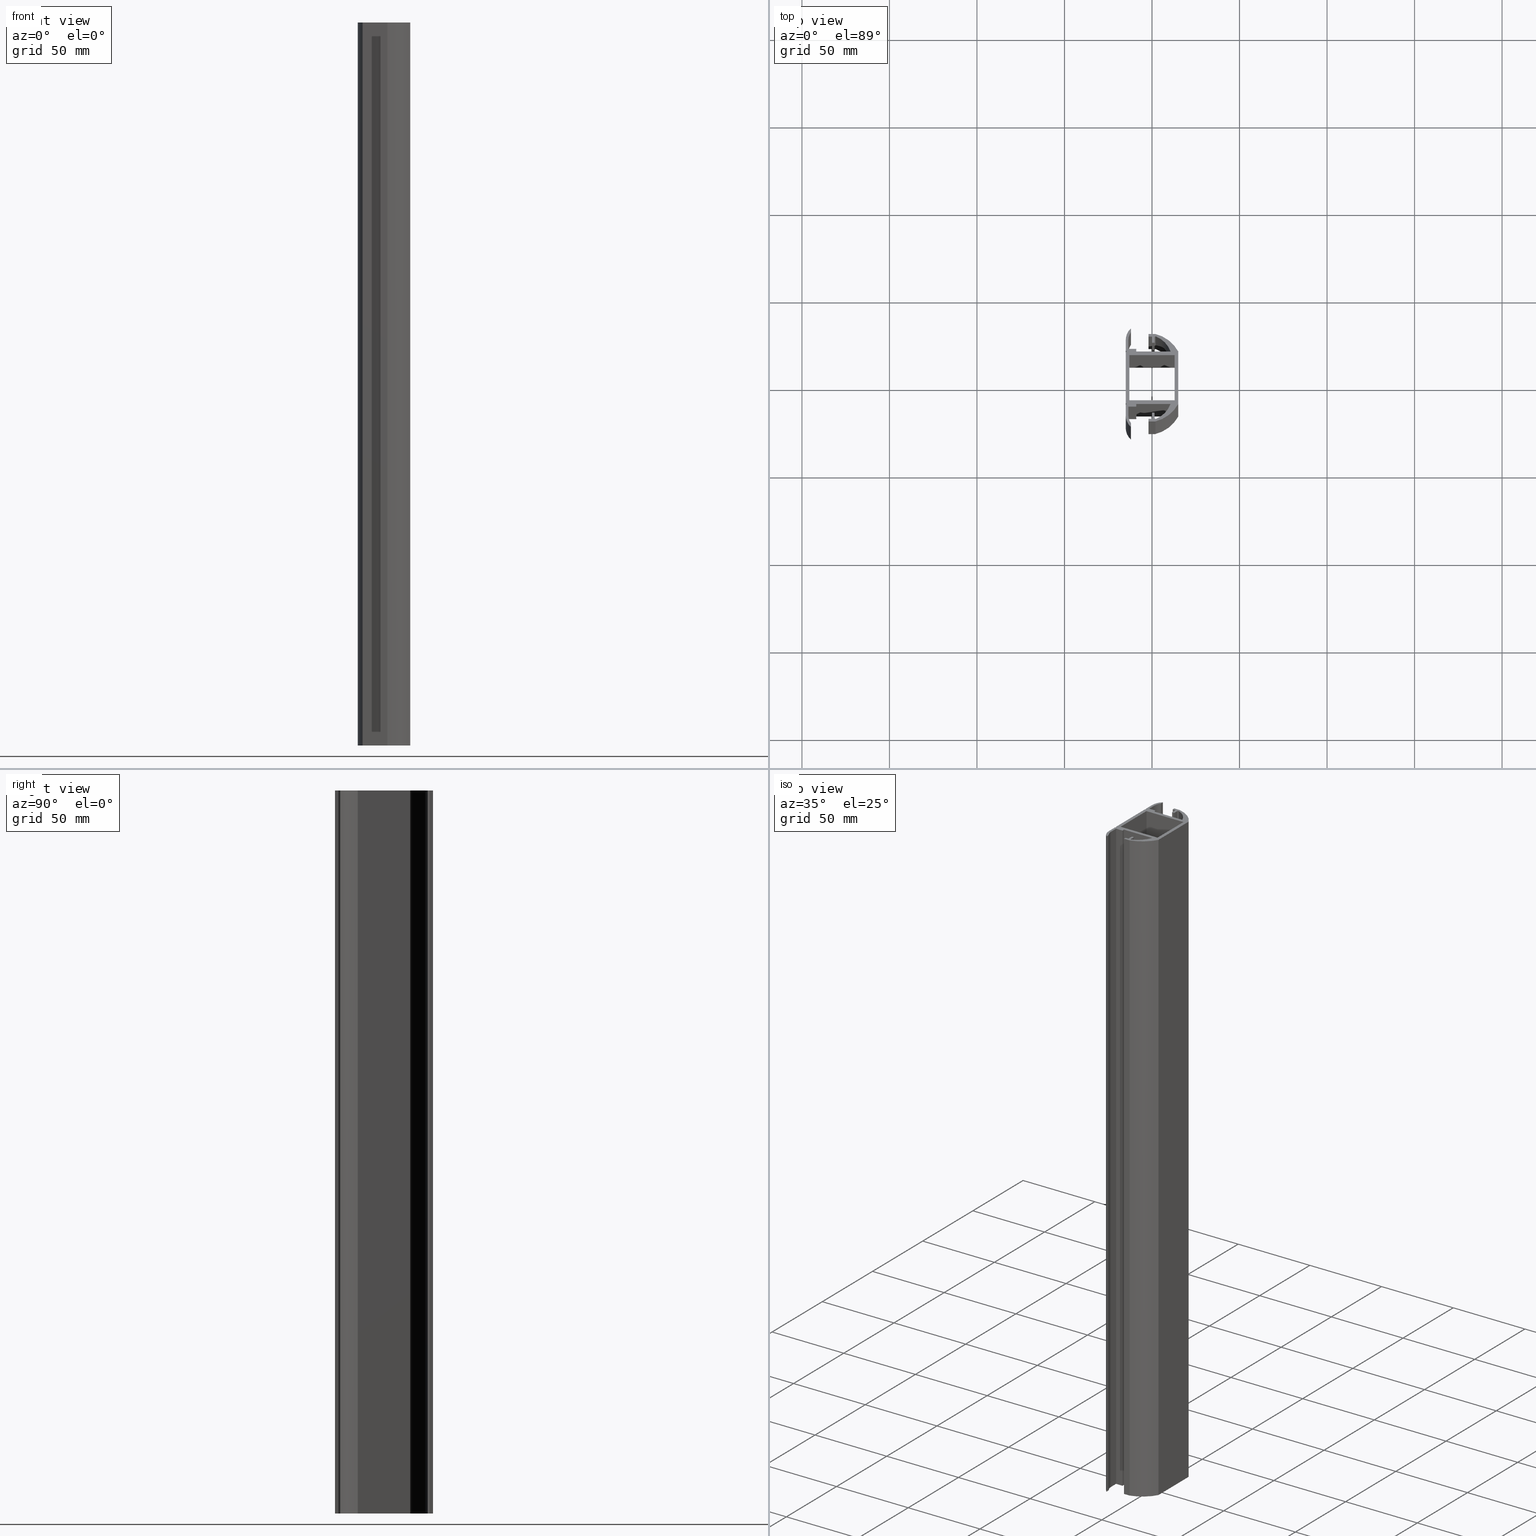
[diagram: canonical four-view strip — front | top / right | iso, engineering-drawing reading convention]
A machine part, canonical four-view strip (front | top / right | iso — engineering-drawing reading convention). The complete STEP part file that produces these views, byte-faithful:
ISO-10303-21;
HEADER;
/* Generated by software containing ST-Developer
 * from STEP Tools, Inc. (www.steptools.com) 
 */

FILE_DESCRIPTION(
/* description */ ('PROFILO X PROTEZIONI '),
/* implementation_level */ '2;1');

FILE_NAME(
/* name */ 'C:\\Users\\tecnico7\\Desktop\\DAAPR0000917.stp',
/* time_stamp */ '2022-07-06T16:43:24+02:00',
/* author */ ('tecnico7'),
/* organization */ (''),
/* preprocessor_version */ 'ST-DEVELOPER v18.1',
/* originating_system */ 'Autodesk Inventor 2022',
/* authorisation */ '');

FILE_SCHEMA (('AUTOMOTIVE_DESIGN { 1 0 10303 214 3 1 1 }'));
ENDSEC;

DATA;
#10=MECHANICAL_DESIGN_GEOMETRIC_PRESENTATION_REPRESENTATION('',(#13),#1602);
#11=SHAPE_REPRESENTATION_RELATIONSHIP('SRR','None',#1609,#12);
#12=ADVANCED_BREP_SHAPE_REPRESENTATION('',(#14),#1601);
#13=STYLED_ITEM('',(#1618),#14);
#14=MANIFOLD_SOLID_BREP('Solido1',#973);
#15=FACE_BOUND('',#146,.T.);
#16=FACE_BOUND('',#148,.T.);
#17=PLANE('',#1002);
#18=PLANE('',#1003);
#19=PLANE('',#1004);
#20=PLANE('',#1005);
#21=PLANE('',#1009);
#22=PLANE('',#1013);
#23=PLANE('',#1014);
#24=PLANE('',#1015);
#25=PLANE('',#1016);
#26=PLANE('',#1017);
#27=PLANE('',#1018);
#28=PLANE('',#1019);
#29=PLANE('',#1020);
#30=PLANE('',#1021);
#31=PLANE('',#1022);
#32=PLANE('',#1023);
#33=PLANE('',#1027);
#34=PLANE('',#1028);
#35=PLANE('',#1029);
#36=PLANE('',#1030);
#37=PLANE('',#1034);
#38=PLANE('',#1035);
#39=PLANE('',#1036);
#40=PLANE('',#1037);
#41=PLANE('',#1038);
#42=PLANE('',#1039);
#43=PLANE('',#1046);
#44=PLANE('',#1047);
#45=PLANE('',#1048);
#46=PLANE('',#1049);
#47=PLANE('',#1056);
#48=PLANE('',#1057);
#49=PLANE('',#1058);
#50=PLANE('',#1059);
#51=PLANE('',#1060);
#52=PLANE('',#1061);
#53=PLANE('',#1062);
#54=PLANE('',#1063);
#55=FACE_OUTER_BOUND('',#103,.T.);
#56=FACE_OUTER_BOUND('',#104,.T.);
#57=FACE_OUTER_BOUND('',#105,.T.);
#58=FACE_OUTER_BOUND('',#106,.T.);
#59=FACE_OUTER_BOUND('',#107,.T.);
#60=FACE_OUTER_BOUND('',#108,.T.);
#61=FACE_OUTER_BOUND('',#109,.T.);
#62=FACE_OUTER_BOUND('',#110,.T.);
#63=FACE_OUTER_BOUND('',#111,.T.);
#64=FACE_OUTER_BOUND('',#112,.T.);
#65=FACE_OUTER_BOUND('',#113,.T.);
#66=FACE_OUTER_BOUND('',#114,.T.);
#67=FACE_OUTER_BOUND('',#115,.T.);
#68=FACE_OUTER_BOUND('',#116,.T.);
#69=FACE_OUTER_BOUND('',#117,.T.);
#70=FACE_OUTER_BOUND('',#118,.T.);
#71=FACE_OUTER_BOUND('',#119,.T.);
#72=FACE_OUTER_BOUND('',#120,.T.);
#73=FACE_OUTER_BOUND('',#121,.T.);
#74=FACE_OUTER_BOUND('',#122,.T.);
#75=FACE_OUTER_BOUND('',#123,.T.);
#76=FACE_OUTER_BOUND('',#124,.T.);
#77=FACE_OUTER_BOUND('',#125,.T.);
#78=FACE_OUTER_BOUND('',#126,.T.);
#79=FACE_OUTER_BOUND('',#127,.T.);
#80=FACE_OUTER_BOUND('',#128,.T.);
#81=FACE_OUTER_BOUND('',#129,.T.);
#82=FACE_OUTER_BOUND('',#130,.T.);
#83=FACE_OUTER_BOUND('',#131,.T.);
#84=FACE_OUTER_BOUND('',#132,.T.);
#85=FACE_OUTER_BOUND('',#133,.T.);
#86=FACE_OUTER_BOUND('',#134,.T.);
#87=FACE_OUTER_BOUND('',#135,.T.);
#88=FACE_OUTER_BOUND('',#136,.T.);
#89=FACE_OUTER_BOUND('',#137,.T.);
#90=FACE_OUTER_BOUND('',#138,.T.);
#91=FACE_OUTER_BOUND('',#139,.T.);
#92=FACE_OUTER_BOUND('',#140,.T.);
#93=FACE_OUTER_BOUND('',#141,.T.);
#94=FACE_OUTER_BOUND('',#142,.T.);
#95=FACE_OUTER_BOUND('',#143,.T.);
#96=FACE_OUTER_BOUND('',#144,.T.);
#97=FACE_OUTER_BOUND('',#145,.T.);
#98=FACE_OUTER_BOUND('',#147,.T.);
#99=FACE_OUTER_BOUND('',#149,.T.);
#100=FACE_OUTER_BOUND('',#150,.T.);
#101=FACE_OUTER_BOUND('',#151,.T.);
#102=FACE_OUTER_BOUND('',#152,.T.);
#103=EDGE_LOOP('',(#639,#640,#641,#642));
#104=EDGE_LOOP('',(#643,#644,#645,#646));
#105=EDGE_LOOP('',(#647,#648,#649,#650));
#106=EDGE_LOOP('',(#651,#652,#653,#654));
#107=EDGE_LOOP('',(#655,#656,#657,#658));
#108=EDGE_LOOP('',(#659,#660,#661,#662));
#109=EDGE_LOOP('',(#663,#664,#665,#666));
#110=EDGE_LOOP('',(#667,#668,#669,#670));
#111=EDGE_LOOP('',(#671,#672,#673,#674));
#112=EDGE_LOOP('',(#675,#676,#677,#678));
#113=EDGE_LOOP('',(#679,#680,#681,#682));
#114=EDGE_LOOP('',(#683,#684,#685,#686));
#115=EDGE_LOOP('',(#687,#688,#689,#690));
#116=EDGE_LOOP('',(#691,#692,#693,#694));
#117=EDGE_LOOP('',(#695,#696,#697,#698));
#118=EDGE_LOOP('',(#699,#700,#701,#702));
#119=EDGE_LOOP('',(#703,#704,#705,#706));
#120=EDGE_LOOP('',(#707,#708,#709,#710));
#121=EDGE_LOOP('',(#711,#712,#713,#714));
#122=EDGE_LOOP('',(#715,#716,#717,#718));
#123=EDGE_LOOP('',(#719,#720,#721,#722));
#124=EDGE_LOOP('',(#723,#724,#725,#726));
#125=EDGE_LOOP('',(#727,#728,#729,#730));
#126=EDGE_LOOP('',(#731,#732,#733,#734));
#127=EDGE_LOOP('',(#735,#736,#737,#738));
#128=EDGE_LOOP('',(#739,#740,#741,#742));
#129=EDGE_LOOP('',(#743,#744,#745,#746));
#130=EDGE_LOOP('',(#747,#748,#749,#750));
#131=EDGE_LOOP('',(#751,#752,#753,#754));
#132=EDGE_LOOP('',(#755,#756,#757,#758));
#133=EDGE_LOOP('',(#759,#760,#761,#762));
#134=EDGE_LOOP('',(#763,#764,#765,#766));
#135=EDGE_LOOP('',(#767,#768,#769,#770));
#136=EDGE_LOOP('',(#771,#772,#773,#774));
#137=EDGE_LOOP('',(#775,#776,#777,#778));
#138=EDGE_LOOP('',(#779,#780,#781,#782));
#139=EDGE_LOOP('',(#783,#784,#785,#786));
#140=EDGE_LOOP('',(#787,#788,#789,#790));
#141=EDGE_LOOP('',(#791,#792,#793,#794));
#142=EDGE_LOOP('',(#795,#796,#797,#798));
#143=EDGE_LOOP('',(#799,#800,#801,#802));
#144=EDGE_LOOP('',(#803,#804,#805,#806));
#145=EDGE_LOOP('',(#807,#808,#809,#810,#811,#812,#813,#814,#815,#816,#817,
#818,#819,#820,#821,#822,#823,#824,#825,#826,#827,#828,#829,#830,#831,#832,
#833,#834,#835,#836,#837,#838,#839,#840,#841,#842,#843,#844,#845,#846,#847,
#848));
#146=EDGE_LOOP('',(#849,#850,#851,#852));
#147=EDGE_LOOP('',(#853,#854,#855,#856,#857,#858,#859,#860,#861,#862,#863,
#864,#865,#866,#867,#868,#869,#870,#871,#872,#873,#874,#875,#876,#877,#878,
#879,#880,#881,#882,#883,#884,#885,#886,#887,#888,#889,#890,#891,#892,#893,
#894));
#148=EDGE_LOOP('',(#895,#896,#897,#898));
#149=EDGE_LOOP('',(#899,#900,#901,#902));
#150=EDGE_LOOP('',(#903,#904,#905,#906));
#151=EDGE_LOOP('',(#907,#908,#909,#910));
#152=EDGE_LOOP('',(#911,#912,#913,#914));
#153=LINE('',#1326,#271);
#154=LINE('',#1329,#272);
#155=LINE('',#1335,#273);
#156=LINE('',#1338,#274);
#157=LINE('',#1340,#275);
#158=LINE('',#1341,#276);
#159=LINE('',#1344,#277);
#160=LINE('',#1346,#278);
#161=LINE('',#1347,#279);
#162=LINE('',#1350,#280);
#163=LINE('',#1352,#281);
#164=LINE('',#1353,#282);
#165=LINE('',#1356,#283);
#166=LINE('',#1358,#284);
#167=LINE('',#1359,#285);
#168=LINE('',#1365,#286);
#169=LINE('',#1368,#287);
#170=LINE('',#1370,#288);
#171=LINE('',#1371,#289);
#172=LINE('',#1377,#290);
#173=LINE('',#1380,#291);
#174=LINE('',#1383,#292);
#175=LINE('',#1385,#293);
#176=LINE('',#1386,#294);
#177=LINE('',#1389,#295);
#178=LINE('',#1391,#296);
#179=LINE('',#1392,#297);
#180=LINE('',#1395,#298);
#181=LINE('',#1397,#299);
#182=LINE('',#1398,#300);
#183=LINE('',#1401,#301);
#184=LINE('',#1403,#302);
#185=LINE('',#1404,#303);
#186=LINE('',#1407,#304);
#187=LINE('',#1409,#305);
#188=LINE('',#1410,#306);
#189=LINE('',#1412,#307);
#190=LINE('',#1413,#308);
#191=LINE('',#1417,#309);
#192=LINE('',#1419,#310);
#193=LINE('',#1421,#311);
#194=LINE('',#1422,#312);
#195=LINE('',#1425,#313);
#196=LINE('',#1427,#314);
#197=LINE('',#1428,#315);
#198=LINE('',#1431,#316);
#199=LINE('',#1433,#317);
#200=LINE('',#1434,#318);
#201=LINE('',#1436,#319);
#202=LINE('',#1437,#320);
#203=LINE('',#1441,#321);
#204=LINE('',#1443,#322);
#205=LINE('',#1445,#323);
#206=LINE('',#1446,#324);
#207=LINE('',#1452,#325);
#208=LINE('',#1455,#326);
#209=LINE('',#1457,#327);
#210=LINE('',#1458,#328);
#211=LINE('',#1461,#329);
#212=LINE('',#1463,#330);
#213=LINE('',#1464,#331);
#214=LINE('',#1467,#332);
#215=LINE('',#1469,#333);
#216=LINE('',#1470,#334);
#217=LINE('',#1473,#335);
#218=LINE('',#1475,#336);
#219=LINE('',#1476,#337);
#220=LINE('',#1482,#338);
#221=LINE('',#1485,#339);
#222=LINE('',#1488,#340);
#223=LINE('',#1490,#341);
#224=LINE('',#1491,#342);
#225=LINE('',#1494,#343);
#226=LINE('',#1496,#344);
#227=LINE('',#1497,#345);
#228=LINE('',#1500,#346);
#229=LINE('',#1502,#347);
#230=LINE('',#1503,#348);
#231=LINE('',#1506,#349);
#232=LINE('',#1508,#350);
#233=LINE('',#1509,#351);
#234=LINE('',#1512,#352);
#235=LINE('',#1514,#353);
#236=LINE('',#1515,#354);
#237=LINE('',#1518,#355);
#238=LINE('',#1520,#356);
#239=LINE('',#1521,#357);
#240=LINE('',#1526,#358);
#241=LINE('',#1534,#359);
#242=LINE('',#1536,#360);
#243=LINE('',#1538,#361);
#244=LINE('',#1539,#362);
#245=LINE('',#1542,#363);
#246=LINE('',#1544,#364);
#247=LINE('',#1545,#365);
#248=LINE('',#1549,#366);
#249=LINE('',#1551,#367);
#250=LINE('',#1553,#368);
#251=LINE('',#1554,#369);
#252=LINE('',#1557,#370);
#253=LINE('',#1559,#371);
#254=LINE('',#1560,#372);
#255=LINE('',#1566,#373);
#256=LINE('',#1569,#374);
#257=LINE('',#1575,#375);
#258=LINE('',#1578,#376);
#259=LINE('',#1580,#377);
#260=LINE('',#1581,#378);
#261=LINE('',#1583,#379);
#262=LINE('',#1584,#380);
#263=LINE('',#1586,#381);
#264=LINE('',#1587,#382);
#265=LINE('',#1588,#383);
#266=LINE('',#1589,#384);
#267=LINE('',#1591,#385);
#268=LINE('',#1592,#386);
#269=LINE('',#1593,#387);
#270=LINE('',#1594,#388);
#271=VECTOR('',#1070,10.);
#272=VECTOR('',#1073,10.);
#273=VECTOR('',#1080,10.);
#274=VECTOR('',#1083,10.);
#275=VECTOR('',#1084,10.);
#276=VECTOR('',#1085,10.);
#277=VECTOR('',#1088,10.);
#278=VECTOR('',#1089,10.);
#279=VECTOR('',#1090,10.);
#280=VECTOR('',#1093,10.);
#281=VECTOR('',#1094,10.);
#282=VECTOR('',#1095,10.);
#283=VECTOR('',#1098,10.);
#284=VECTOR('',#1099,10.);
#285=VECTOR('',#1100,10.);
#286=VECTOR('',#1107,10.);
#287=VECTOR('',#1110,10.);
#288=VECTOR('',#1111,10.);
#289=VECTOR('',#1112,10.);
#290=VECTOR('',#1117,10.);
#291=VECTOR('',#1120,10.);
#292=VECTOR('',#1123,10.);
#293=VECTOR('',#1124,10.);
#294=VECTOR('',#1125,10.);
#295=VECTOR('',#1128,10.);
#296=VECTOR('',#1129,10.);
#297=VECTOR('',#1130,10.);
#298=VECTOR('',#1133,10.);
#299=VECTOR('',#1134,10.);
#300=VECTOR('',#1135,10.);
#301=VECTOR('',#1138,10.);
#302=VECTOR('',#1139,10.);
#303=VECTOR('',#1140,10.);
#304=VECTOR('',#1143,10.);
#305=VECTOR('',#1144,10.);
#306=VECTOR('',#1145,10.);
#307=VECTOR('',#1148,10.);
#308=VECTOR('',#1149,10.);
#309=VECTOR('',#1152,10.);
#310=VECTOR('',#1153,10.);
#311=VECTOR('',#1154,10.);
#312=VECTOR('',#1155,10.);
#313=VECTOR('',#1158,10.);
#314=VECTOR('',#1159,10.);
#315=VECTOR('',#1160,10.);
#316=VECTOR('',#1163,10.);
#317=VECTOR('',#1164,10.);
#318=VECTOR('',#1165,10.);
#319=VECTOR('',#1168,10.);
#320=VECTOR('',#1169,10.);
#321=VECTOR('',#1172,10.);
#322=VECTOR('',#1173,10.);
#323=VECTOR('',#1174,10.);
#324=VECTOR('',#1175,10.);
#325=VECTOR('',#1182,10.);
#326=VECTOR('',#1185,10.);
#327=VECTOR('',#1186,10.);
#328=VECTOR('',#1187,10.);
#329=VECTOR('',#1190,10.);
#330=VECTOR('',#1191,10.);
#331=VECTOR('',#1192,10.);
#332=VECTOR('',#1195,10.);
#333=VECTOR('',#1196,10.);
#334=VECTOR('',#1197,10.);
#335=VECTOR('',#1200,10.);
#336=VECTOR('',#1201,10.);
#337=VECTOR('',#1202,10.);
#338=VECTOR('',#1207,10.);
#339=VECTOR('',#1210,10.);
#340=VECTOR('',#1213,10.);
#341=VECTOR('',#1214,10.);
#342=VECTOR('',#1215,10.);
#343=VECTOR('',#1218,10.);
#344=VECTOR('',#1219,10.);
#345=VECTOR('',#1220,10.);
#346=VECTOR('',#1223,10.);
#347=VECTOR('',#1224,10.);
#348=VECTOR('',#1225,10.);
#349=VECTOR('',#1228,10.);
#350=VECTOR('',#1229,10.);
#351=VECTOR('',#1230,10.);
#352=VECTOR('',#1233,10.);
#353=VECTOR('',#1234,10.);
#354=VECTOR('',#1235,10.);
#355=VECTOR('',#1238,10.);
#356=VECTOR('',#1239,10.);
#357=VECTOR('',#1240,10.);
#358=VECTOR('',#1245,10.);
#359=VECTOR('',#1256,10.);
#360=VECTOR('',#1257,10.);
#361=VECTOR('',#1258,10.);
#362=VECTOR('',#1259,10.);
#363=VECTOR('',#1262,10.);
#364=VECTOR('',#1263,10.);
#365=VECTOR('',#1264,10.);
#366=VECTOR('',#1267,10.);
#367=VECTOR('',#1268,10.);
#368=VECTOR('',#1269,10.);
#369=VECTOR('',#1270,10.);
#370=VECTOR('',#1273,10.);
#371=VECTOR('',#1274,10.);
#372=VECTOR('',#1275,10.);
#373=VECTOR('',#1280,10.);
#374=VECTOR('',#1283,10.);
#375=VECTOR('',#1288,10.);
#376=VECTOR('',#1291,10.);
#377=VECTOR('',#1294,10.);
#378=VECTOR('',#1295,10.);
#379=VECTOR('',#1298,10.);
#380=VECTOR('',#1299,10.);
#381=VECTOR('',#1302,10.);
#382=VECTOR('',#1303,10.);
#383=VECTOR('',#1304,10.);
#384=VECTOR('',#1305,10.);
#385=VECTOR('',#1308,10.);
#386=VECTOR('',#1309,10.);
#387=VECTOR('',#1310,10.);
#388=VECTOR('',#1311,10.);
#389=CIRCLE('',#997,0.49999999995);
#390=CIRCLE('',#998,0.49999999995);
#391=CIRCLE('',#1000,14.49999999855);
#392=CIRCLE('',#1001,14.49999999855);
#393=CIRCLE('',#1007,7.49999999925);
#394=CIRCLE('',#1008,7.49999999925);
#395=CIRCLE('',#1011,20.5912602799149);
#396=CIRCLE('',#1012,20.5912602799149);
#397=CIRCLE('',#1025,7.49999999925);
#398=CIRCLE('',#1026,7.49999999925);
#399=CIRCLE('',#1032,20.5912602799149);
#400=CIRCLE('',#1033,20.5912602799149);
#401=CIRCLE('',#1041,0.49999999995);
#402=CIRCLE('',#1042,0.49999999995);
#403=CIRCLE('',#1044,14.49999999855);
#404=CIRCLE('',#1045,14.49999999855);
#405=CIRCLE('',#1051,8.9999999991);
#406=CIRCLE('',#1052,8.9999999991);
#407=CIRCLE('',#1054,8.9999999991);
#408=CIRCLE('',#1055,8.9999999991);
#409=VERTEX_POINT('',#1322);
#410=VERTEX_POINT('',#1323);
#411=VERTEX_POINT('',#1325);
#412=VERTEX_POINT('',#1327);
#413=VERTEX_POINT('',#1331);
#414=VERTEX_POINT('',#1333);
#415=VERTEX_POINT('',#1337);
#416=VERTEX_POINT('',#1339);
#417=VERTEX_POINT('',#1343);
#418=VERTEX_POINT('',#1345);
#419=VERTEX_POINT('',#1349);
#420=VERTEX_POINT('',#1351);
#421=VERTEX_POINT('',#1355);
#422=VERTEX_POINT('',#1357);
#423=VERTEX_POINT('',#1361);
#424=VERTEX_POINT('',#1363);
#425=VERTEX_POINT('',#1367);
#426=VERTEX_POINT('',#1369);
#427=VERTEX_POINT('',#1373);
#428=VERTEX_POINT('',#1374);
#429=VERTEX_POINT('',#1376);
#430=VERTEX_POINT('',#1378);
#431=VERTEX_POINT('',#1382);
#432=VERTEX_POINT('',#1384);
#433=VERTEX_POINT('',#1388);
#434=VERTEX_POINT('',#1390);
#435=VERTEX_POINT('',#1394);
#436=VERTEX_POINT('',#1396);
#437=VERTEX_POINT('',#1400);
#438=VERTEX_POINT('',#1402);
#439=VERTEX_POINT('',#1406);
#440=VERTEX_POINT('',#1408);
#441=VERTEX_POINT('',#1415);
#442=VERTEX_POINT('',#1416);
#443=VERTEX_POINT('',#1418);
#444=VERTEX_POINT('',#1420);
#445=VERTEX_POINT('',#1424);
#446=VERTEX_POINT('',#1426);
#447=VERTEX_POINT('',#1430);
#448=VERTEX_POINT('',#1432);
#449=VERTEX_POINT('',#1439);
#450=VERTEX_POINT('',#1440);
#451=VERTEX_POINT('',#1442);
#452=VERTEX_POINT('',#1444);
#453=VERTEX_POINT('',#1448);
#454=VERTEX_POINT('',#1450);
#455=VERTEX_POINT('',#1454);
#456=VERTEX_POINT('',#1456);
#457=VERTEX_POINT('',#1460);
#458=VERTEX_POINT('',#1462);
#459=VERTEX_POINT('',#1466);
#460=VERTEX_POINT('',#1468);
#461=VERTEX_POINT('',#1472);
#462=VERTEX_POINT('',#1474);
#463=VERTEX_POINT('',#1478);
#464=VERTEX_POINT('',#1479);
#465=VERTEX_POINT('',#1481);
#466=VERTEX_POINT('',#1483);
#467=VERTEX_POINT('',#1487);
#468=VERTEX_POINT('',#1489);
#469=VERTEX_POINT('',#1493);
#470=VERTEX_POINT('',#1495);
#471=VERTEX_POINT('',#1499);
#472=VERTEX_POINT('',#1501);
#473=VERTEX_POINT('',#1505);
#474=VERTEX_POINT('',#1507);
#475=VERTEX_POINT('',#1511);
#476=VERTEX_POINT('',#1513);
#477=VERTEX_POINT('',#1517);
#478=VERTEX_POINT('',#1519);
#479=VERTEX_POINT('',#1523);
#480=VERTEX_POINT('',#1525);
#481=VERTEX_POINT('',#1532);
#482=VERTEX_POINT('',#1533);
#483=VERTEX_POINT('',#1535);
#484=VERTEX_POINT('',#1537);
#485=VERTEX_POINT('',#1541);
#486=VERTEX_POINT('',#1543);
#487=VERTEX_POINT('',#1547);
#488=VERTEX_POINT('',#1548);
#489=VERTEX_POINT('',#1550);
#490=VERTEX_POINT('',#1552);
#491=VERTEX_POINT('',#1556);
#492=VERTEX_POINT('',#1558);
#493=VERTEX_POINT('',#1562);
#494=VERTEX_POINT('',#1563);
#495=VERTEX_POINT('',#1565);
#496=VERTEX_POINT('',#1567);
#497=VERTEX_POINT('',#1571);
#498=VERTEX_POINT('',#1572);
#499=VERTEX_POINT('',#1574);
#500=VERTEX_POINT('',#1576);
#501=EDGE_CURVE('',#409,#410,#389,.T.);
#502=EDGE_CURVE('',#411,#409,#153,.T.);
#503=EDGE_CURVE('',#412,#411,#390,.T.);
#504=EDGE_CURVE('',#412,#410,#154,.T.);
#505=EDGE_CURVE('',#410,#413,#391,.T.);
#506=EDGE_CURVE('',#414,#412,#392,.T.);
#507=EDGE_CURVE('',#414,#413,#155,.T.);
#508=EDGE_CURVE('',#413,#415,#156,.T.);
#509=EDGE_CURVE('',#416,#414,#157,.T.);
#510=EDGE_CURVE('',#416,#415,#158,.T.);
#511=EDGE_CURVE('',#415,#417,#159,.T.);
#512=EDGE_CURVE('',#418,#416,#160,.T.);
#513=EDGE_CURVE('',#418,#417,#161,.T.);
#514=EDGE_CURVE('',#417,#419,#162,.T.);
#515=EDGE_CURVE('',#420,#418,#163,.T.);
#516=EDGE_CURVE('',#420,#419,#164,.T.);
#517=EDGE_CURVE('',#419,#421,#165,.T.);
#518=EDGE_CURVE('',#422,#420,#166,.T.);
#519=EDGE_CURVE('',#422,#421,#167,.T.);
#520=EDGE_CURVE('',#421,#423,#393,.T.);
#521=EDGE_CURVE('',#424,#422,#394,.T.);
#522=EDGE_CURVE('',#424,#423,#168,.T.);
#523=EDGE_CURVE('',#423,#425,#169,.T.);
#524=EDGE_CURVE('',#426,#424,#170,.T.);
#525=EDGE_CURVE('',#425,#426,#171,.T.);
#526=EDGE_CURVE('',#427,#428,#395,.T.);
#527=EDGE_CURVE('',#429,#427,#172,.T.);
#528=EDGE_CURVE('',#430,#429,#396,.T.);
#529=EDGE_CURVE('',#430,#428,#173,.T.);
#530=EDGE_CURVE('',#428,#431,#174,.T.);
#531=EDGE_CURVE('',#432,#430,#175,.T.);
#532=EDGE_CURVE('',#432,#431,#176,.T.);
#533=EDGE_CURVE('',#431,#433,#177,.T.);
#534=EDGE_CURVE('',#434,#432,#178,.T.);
#535=EDGE_CURVE('',#434,#433,#179,.T.);
#536=EDGE_CURVE('',#433,#435,#180,.T.);
#537=EDGE_CURVE('',#436,#434,#181,.T.);
#538=EDGE_CURVE('',#436,#435,#182,.T.);
#539=EDGE_CURVE('',#435,#437,#183,.T.);
#540=EDGE_CURVE('',#438,#436,#184,.T.);
#541=EDGE_CURVE('',#438,#437,#185,.T.);
#542=EDGE_CURVE('',#437,#439,#186,.T.);
#543=EDGE_CURVE('',#440,#438,#187,.T.);
#544=EDGE_CURVE('',#440,#439,#188,.T.);
#545=EDGE_CURVE('',#439,#409,#189,.T.);
#546=EDGE_CURVE('',#411,#440,#190,.T.);
#547=EDGE_CURVE('',#441,#442,#191,.T.);
#548=EDGE_CURVE('',#443,#441,#192,.T.);
#549=EDGE_CURVE('',#444,#443,#193,.T.);
#550=EDGE_CURVE('',#444,#442,#194,.T.);
#551=EDGE_CURVE('',#442,#445,#195,.T.);
#552=EDGE_CURVE('',#446,#444,#196,.T.);
#553=EDGE_CURVE('',#446,#445,#197,.T.);
#554=EDGE_CURVE('',#445,#447,#198,.T.);
#555=EDGE_CURVE('',#448,#446,#199,.T.);
#556=EDGE_CURVE('',#448,#447,#200,.T.);
#557=EDGE_CURVE('',#447,#441,#201,.T.);
#558=EDGE_CURVE('',#443,#448,#202,.T.);
#559=EDGE_CURVE('',#449,#450,#203,.T.);
#560=EDGE_CURVE('',#451,#449,#204,.T.);
#561=EDGE_CURVE('',#452,#451,#205,.T.);
#562=EDGE_CURVE('',#452,#450,#206,.T.);
#563=EDGE_CURVE('',#450,#453,#397,.T.);
#564=EDGE_CURVE('',#454,#452,#398,.T.);
#565=EDGE_CURVE('',#454,#453,#207,.T.);
#566=EDGE_CURVE('',#453,#455,#208,.T.);
#567=EDGE_CURVE('',#456,#454,#209,.T.);
#568=EDGE_CURVE('',#456,#455,#210,.T.);
#569=EDGE_CURVE('',#455,#457,#211,.T.);
#570=EDGE_CURVE('',#458,#456,#212,.T.);
#571=EDGE_CURVE('',#458,#457,#213,.T.);
#572=EDGE_CURVE('',#457,#459,#214,.T.);
#573=EDGE_CURVE('',#460,#458,#215,.T.);
#574=EDGE_CURVE('',#460,#459,#216,.T.);
#575=EDGE_CURVE('',#459,#461,#217,.T.);
#576=EDGE_CURVE('',#462,#460,#218,.T.);
#577=EDGE_CURVE('',#462,#461,#219,.T.);
#578=EDGE_CURVE('',#463,#464,#399,.T.);
#579=EDGE_CURVE('',#465,#463,#220,.T.);
#580=EDGE_CURVE('',#466,#465,#400,.T.);
#581=EDGE_CURVE('',#464,#466,#221,.T.);
#582=EDGE_CURVE('',#467,#463,#222,.T.);
#583=EDGE_CURVE('',#468,#467,#223,.T.);
#584=EDGE_CURVE('',#465,#468,#224,.T.);
#585=EDGE_CURVE('',#469,#467,#225,.T.);
#586=EDGE_CURVE('',#470,#469,#226,.T.);
#587=EDGE_CURVE('',#468,#470,#227,.T.);
#588=EDGE_CURVE('',#471,#469,#228,.T.);
#589=EDGE_CURVE('',#472,#471,#229,.T.);
#590=EDGE_CURVE('',#470,#472,#230,.T.);
#591=EDGE_CURVE('',#473,#471,#231,.T.);
#592=EDGE_CURVE('',#474,#473,#232,.T.);
#593=EDGE_CURVE('',#472,#474,#233,.T.);
#594=EDGE_CURVE('',#475,#473,#234,.T.);
#595=EDGE_CURVE('',#476,#475,#235,.T.);
#596=EDGE_CURVE('',#474,#476,#236,.T.);
#597=EDGE_CURVE('',#477,#475,#237,.T.);
#598=EDGE_CURVE('',#478,#477,#238,.T.);
#599=EDGE_CURVE('',#476,#478,#239,.T.);
#600=EDGE_CURVE('',#479,#477,#401,.T.);
#601=EDGE_CURVE('',#480,#479,#240,.T.);
#602=EDGE_CURVE('',#478,#480,#402,.T.);
#603=EDGE_CURVE('',#461,#479,#403,.T.);
#604=EDGE_CURVE('',#480,#462,#404,.T.);
#605=EDGE_CURVE('',#481,#482,#241,.T.);
#606=EDGE_CURVE('',#483,#481,#242,.T.);
#607=EDGE_CURVE('',#484,#483,#243,.T.);
#608=EDGE_CURVE('',#482,#484,#244,.T.);
#609=EDGE_CURVE('',#485,#481,#245,.T.);
#610=EDGE_CURVE('',#486,#485,#246,.T.);
#611=EDGE_CURVE('',#483,#486,#247,.T.);
#612=EDGE_CURVE('',#487,#488,#248,.T.);
#613=EDGE_CURVE('',#489,#487,#249,.T.);
#614=EDGE_CURVE('',#490,#489,#250,.T.);
#615=EDGE_CURVE('',#488,#490,#251,.T.);
#616=EDGE_CURVE('',#491,#487,#252,.T.);
#617=EDGE_CURVE('',#492,#491,#253,.T.);
#618=EDGE_CURVE('',#489,#492,#254,.T.);
#619=EDGE_CURVE('',#493,#494,#405,.T.);
#620=EDGE_CURVE('',#495,#493,#255,.T.);
#621=EDGE_CURVE('',#496,#495,#406,.T.);
#622=EDGE_CURVE('',#494,#496,#256,.T.);
#623=EDGE_CURVE('',#497,#498,#407,.T.);
#624=EDGE_CURVE('',#497,#499,#257,.T.);
#625=EDGE_CURVE('',#500,#499,#408,.T.);
#626=EDGE_CURVE('',#498,#500,#258,.T.);
#627=EDGE_CURVE('',#499,#490,#259,.T.);
#628=EDGE_CURVE('',#497,#488,#260,.T.);
#629=EDGE_CURVE('',#492,#484,#261,.T.);
#630=EDGE_CURVE('',#491,#482,#262,.T.);
#631=EDGE_CURVE('',#429,#466,#263,.T.);
#632=EDGE_CURVE('',#451,#500,#264,.T.);
#633=EDGE_CURVE('',#486,#496,#265,.T.);
#634=EDGE_CURVE('',#495,#426,#266,.T.);
#635=EDGE_CURVE('',#493,#425,#267,.T.);
#636=EDGE_CURVE('',#485,#494,#268,.T.);
#637=EDGE_CURVE('',#449,#498,#269,.T.);
#638=EDGE_CURVE('',#427,#464,#270,.T.);
#639=ORIENTED_EDGE('',*,*,#501,.F.);
#640=ORIENTED_EDGE('',*,*,#502,.F.);
#641=ORIENTED_EDGE('',*,*,#503,.F.);
#642=ORIENTED_EDGE('',*,*,#504,.T.);
#643=ORIENTED_EDGE('',*,*,#505,.F.);
#644=ORIENTED_EDGE('',*,*,#504,.F.);
#645=ORIENTED_EDGE('',*,*,#506,.F.);
#646=ORIENTED_EDGE('',*,*,#507,.T.);
#647=ORIENTED_EDGE('',*,*,#508,.F.);
#648=ORIENTED_EDGE('',*,*,#507,.F.);
#649=ORIENTED_EDGE('',*,*,#509,.F.);
#650=ORIENTED_EDGE('',*,*,#510,.T.);
#651=ORIENTED_EDGE('',*,*,#511,.F.);
#652=ORIENTED_EDGE('',*,*,#510,.F.);
#653=ORIENTED_EDGE('',*,*,#512,.F.);
#654=ORIENTED_EDGE('',*,*,#513,.T.);
#655=ORIENTED_EDGE('',*,*,#514,.F.);
#656=ORIENTED_EDGE('',*,*,#513,.F.);
#657=ORIENTED_EDGE('',*,*,#515,.F.);
#658=ORIENTED_EDGE('',*,*,#516,.T.);
#659=ORIENTED_EDGE('',*,*,#517,.F.);
#660=ORIENTED_EDGE('',*,*,#516,.F.);
#661=ORIENTED_EDGE('',*,*,#518,.F.);
#662=ORIENTED_EDGE('',*,*,#519,.T.);
#663=ORIENTED_EDGE('',*,*,#520,.F.);
#664=ORIENTED_EDGE('',*,*,#519,.F.);
#665=ORIENTED_EDGE('',*,*,#521,.F.);
#666=ORIENTED_EDGE('',*,*,#522,.T.);
#667=ORIENTED_EDGE('',*,*,#523,.F.);
#668=ORIENTED_EDGE('',*,*,#522,.F.);
#669=ORIENTED_EDGE('',*,*,#524,.F.);
#670=ORIENTED_EDGE('',*,*,#525,.F.);
#671=ORIENTED_EDGE('',*,*,#526,.F.);
#672=ORIENTED_EDGE('',*,*,#527,.F.);
#673=ORIENTED_EDGE('',*,*,#528,.F.);
#674=ORIENTED_EDGE('',*,*,#529,.T.);
#675=ORIENTED_EDGE('',*,*,#530,.F.);
#676=ORIENTED_EDGE('',*,*,#529,.F.);
#677=ORIENTED_EDGE('',*,*,#531,.F.);
#678=ORIENTED_EDGE('',*,*,#532,.T.);
#679=ORIENTED_EDGE('',*,*,#533,.F.);
#680=ORIENTED_EDGE('',*,*,#532,.F.);
#681=ORIENTED_EDGE('',*,*,#534,.F.);
#682=ORIENTED_EDGE('',*,*,#535,.T.);
#683=ORIENTED_EDGE('',*,*,#536,.F.);
#684=ORIENTED_EDGE('',*,*,#535,.F.);
#685=ORIENTED_EDGE('',*,*,#537,.F.);
#686=ORIENTED_EDGE('',*,*,#538,.T.);
#687=ORIENTED_EDGE('',*,*,#539,.F.);
#688=ORIENTED_EDGE('',*,*,#538,.F.);
#689=ORIENTED_EDGE('',*,*,#540,.F.);
#690=ORIENTED_EDGE('',*,*,#541,.T.);
#691=ORIENTED_EDGE('',*,*,#542,.F.);
#692=ORIENTED_EDGE('',*,*,#541,.F.);
#693=ORIENTED_EDGE('',*,*,#543,.F.);
#694=ORIENTED_EDGE('',*,*,#544,.T.);
#695=ORIENTED_EDGE('',*,*,#545,.F.);
#696=ORIENTED_EDGE('',*,*,#544,.F.);
#697=ORIENTED_EDGE('',*,*,#546,.F.);
#698=ORIENTED_EDGE('',*,*,#502,.T.);
#699=ORIENTED_EDGE('',*,*,#547,.F.);
#700=ORIENTED_EDGE('',*,*,#548,.F.);
#701=ORIENTED_EDGE('',*,*,#549,.F.);
#702=ORIENTED_EDGE('',*,*,#550,.T.);
#703=ORIENTED_EDGE('',*,*,#551,.F.);
#704=ORIENTED_EDGE('',*,*,#550,.F.);
#705=ORIENTED_EDGE('',*,*,#552,.F.);
#706=ORIENTED_EDGE('',*,*,#553,.T.);
#707=ORIENTED_EDGE('',*,*,#554,.F.);
#708=ORIENTED_EDGE('',*,*,#553,.F.);
#709=ORIENTED_EDGE('',*,*,#555,.F.);
#710=ORIENTED_EDGE('',*,*,#556,.T.);
#711=ORIENTED_EDGE('',*,*,#557,.F.);
#712=ORIENTED_EDGE('',*,*,#556,.F.);
#713=ORIENTED_EDGE('',*,*,#558,.F.);
#714=ORIENTED_EDGE('',*,*,#548,.T.);
#715=ORIENTED_EDGE('',*,*,#559,.F.);
#716=ORIENTED_EDGE('',*,*,#560,.F.);
#717=ORIENTED_EDGE('',*,*,#561,.F.);
#718=ORIENTED_EDGE('',*,*,#562,.T.);
#719=ORIENTED_EDGE('',*,*,#563,.F.);
#720=ORIENTED_EDGE('',*,*,#562,.F.);
#721=ORIENTED_EDGE('',*,*,#564,.F.);
#722=ORIENTED_EDGE('',*,*,#565,.T.);
#723=ORIENTED_EDGE('',*,*,#566,.F.);
#724=ORIENTED_EDGE('',*,*,#565,.F.);
#725=ORIENTED_EDGE('',*,*,#567,.F.);
#726=ORIENTED_EDGE('',*,*,#568,.T.);
#727=ORIENTED_EDGE('',*,*,#569,.F.);
#728=ORIENTED_EDGE('',*,*,#568,.F.);
#729=ORIENTED_EDGE('',*,*,#570,.F.);
#730=ORIENTED_EDGE('',*,*,#571,.T.);
#731=ORIENTED_EDGE('',*,*,#572,.F.);
#732=ORIENTED_EDGE('',*,*,#571,.F.);
#733=ORIENTED_EDGE('',*,*,#573,.F.);
#734=ORIENTED_EDGE('',*,*,#574,.T.);
#735=ORIENTED_EDGE('',*,*,#575,.F.);
#736=ORIENTED_EDGE('',*,*,#574,.F.);
#737=ORIENTED_EDGE('',*,*,#576,.F.);
#738=ORIENTED_EDGE('',*,*,#577,.T.);
#739=ORIENTED_EDGE('',*,*,#578,.F.);
#740=ORIENTED_EDGE('',*,*,#579,.F.);
#741=ORIENTED_EDGE('',*,*,#580,.F.);
#742=ORIENTED_EDGE('',*,*,#581,.F.);
#743=ORIENTED_EDGE('',*,*,#582,.F.);
#744=ORIENTED_EDGE('',*,*,#583,.F.);
#745=ORIENTED_EDGE('',*,*,#584,.F.);
#746=ORIENTED_EDGE('',*,*,#579,.T.);
#747=ORIENTED_EDGE('',*,*,#585,.F.);
#748=ORIENTED_EDGE('',*,*,#586,.F.);
#749=ORIENTED_EDGE('',*,*,#587,.F.);
#750=ORIENTED_EDGE('',*,*,#583,.T.);
#751=ORIENTED_EDGE('',*,*,#588,.F.);
#752=ORIENTED_EDGE('',*,*,#589,.F.);
#753=ORIENTED_EDGE('',*,*,#590,.F.);
#754=ORIENTED_EDGE('',*,*,#586,.T.);
#755=ORIENTED_EDGE('',*,*,#591,.F.);
#756=ORIENTED_EDGE('',*,*,#592,.F.);
#757=ORIENTED_EDGE('',*,*,#593,.F.);
#758=ORIENTED_EDGE('',*,*,#589,.T.);
#759=ORIENTED_EDGE('',*,*,#594,.F.);
#760=ORIENTED_EDGE('',*,*,#595,.F.);
#761=ORIENTED_EDGE('',*,*,#596,.F.);
#762=ORIENTED_EDGE('',*,*,#592,.T.);
#763=ORIENTED_EDGE('',*,*,#597,.F.);
#764=ORIENTED_EDGE('',*,*,#598,.F.);
#765=ORIENTED_EDGE('',*,*,#599,.F.);
#766=ORIENTED_EDGE('',*,*,#595,.T.);
#767=ORIENTED_EDGE('',*,*,#600,.F.);
#768=ORIENTED_EDGE('',*,*,#601,.F.);
#769=ORIENTED_EDGE('',*,*,#602,.F.);
#770=ORIENTED_EDGE('',*,*,#598,.T.);
#771=ORIENTED_EDGE('',*,*,#603,.F.);
#772=ORIENTED_EDGE('',*,*,#577,.F.);
#773=ORIENTED_EDGE('',*,*,#604,.F.);
#774=ORIENTED_EDGE('',*,*,#601,.T.);
#775=ORIENTED_EDGE('',*,*,#605,.F.);
#776=ORIENTED_EDGE('',*,*,#606,.F.);
#777=ORIENTED_EDGE('',*,*,#607,.F.);
#778=ORIENTED_EDGE('',*,*,#608,.F.);
#779=ORIENTED_EDGE('',*,*,#609,.F.);
#780=ORIENTED_EDGE('',*,*,#610,.F.);
#781=ORIENTED_EDGE('',*,*,#611,.F.);
#782=ORIENTED_EDGE('',*,*,#606,.T.);
#783=ORIENTED_EDGE('',*,*,#612,.F.);
#784=ORIENTED_EDGE('',*,*,#613,.F.);
#785=ORIENTED_EDGE('',*,*,#614,.F.);
#786=ORIENTED_EDGE('',*,*,#615,.F.);
#787=ORIENTED_EDGE('',*,*,#616,.F.);
#788=ORIENTED_EDGE('',*,*,#617,.F.);
#789=ORIENTED_EDGE('',*,*,#618,.F.);
#790=ORIENTED_EDGE('',*,*,#613,.T.);
#791=ORIENTED_EDGE('',*,*,#619,.F.);
#792=ORIENTED_EDGE('',*,*,#620,.F.);
#793=ORIENTED_EDGE('',*,*,#621,.F.);
#794=ORIENTED_EDGE('',*,*,#622,.F.);
#795=ORIENTED_EDGE('',*,*,#623,.F.);
#796=ORIENTED_EDGE('',*,*,#624,.T.);
#797=ORIENTED_EDGE('',*,*,#625,.F.);
#798=ORIENTED_EDGE('',*,*,#626,.F.);
#799=ORIENTED_EDGE('',*,*,#615,.T.);
#800=ORIENTED_EDGE('',*,*,#627,.F.);
#801=ORIENTED_EDGE('',*,*,#624,.F.);
#802=ORIENTED_EDGE('',*,*,#628,.T.);
#803=ORIENTED_EDGE('',*,*,#608,.T.);
#804=ORIENTED_EDGE('',*,*,#629,.F.);
#805=ORIENTED_EDGE('',*,*,#617,.T.);
#806=ORIENTED_EDGE('',*,*,#630,.T.);
#807=ORIENTED_EDGE('',*,*,#524,.T.);
#808=ORIENTED_EDGE('',*,*,#521,.T.);
#809=ORIENTED_EDGE('',*,*,#518,.T.);
#810=ORIENTED_EDGE('',*,*,#515,.T.);
#811=ORIENTED_EDGE('',*,*,#512,.T.);
#812=ORIENTED_EDGE('',*,*,#509,.T.);
#813=ORIENTED_EDGE('',*,*,#506,.T.);
#814=ORIENTED_EDGE('',*,*,#503,.T.);
#815=ORIENTED_EDGE('',*,*,#546,.T.);
#816=ORIENTED_EDGE('',*,*,#543,.T.);
#817=ORIENTED_EDGE('',*,*,#540,.T.);
#818=ORIENTED_EDGE('',*,*,#537,.T.);
#819=ORIENTED_EDGE('',*,*,#534,.T.);
#820=ORIENTED_EDGE('',*,*,#531,.T.);
#821=ORIENTED_EDGE('',*,*,#528,.T.);
#822=ORIENTED_EDGE('',*,*,#631,.T.);
#823=ORIENTED_EDGE('',*,*,#580,.T.);
#824=ORIENTED_EDGE('',*,*,#584,.T.);
#825=ORIENTED_EDGE('',*,*,#587,.T.);
#826=ORIENTED_EDGE('',*,*,#590,.T.);
#827=ORIENTED_EDGE('',*,*,#593,.T.);
#828=ORIENTED_EDGE('',*,*,#596,.T.);
#829=ORIENTED_EDGE('',*,*,#599,.T.);
#830=ORIENTED_EDGE('',*,*,#602,.T.);
#831=ORIENTED_EDGE('',*,*,#604,.T.);
#832=ORIENTED_EDGE('',*,*,#576,.T.);
#833=ORIENTED_EDGE('',*,*,#573,.T.);
#834=ORIENTED_EDGE('',*,*,#570,.T.);
#835=ORIENTED_EDGE('',*,*,#567,.T.);
#836=ORIENTED_EDGE('',*,*,#564,.T.);
#837=ORIENTED_EDGE('',*,*,#561,.T.);
#838=ORIENTED_EDGE('',*,*,#632,.T.);
#839=ORIENTED_EDGE('',*,*,#625,.T.);
#840=ORIENTED_EDGE('',*,*,#627,.T.);
#841=ORIENTED_EDGE('',*,*,#614,.T.);
#842=ORIENTED_EDGE('',*,*,#618,.T.);
#843=ORIENTED_EDGE('',*,*,#629,.T.);
#844=ORIENTED_EDGE('',*,*,#607,.T.);
#845=ORIENTED_EDGE('',*,*,#611,.T.);
#846=ORIENTED_EDGE('',*,*,#633,.T.);
#847=ORIENTED_EDGE('',*,*,#621,.T.);
#848=ORIENTED_EDGE('',*,*,#634,.T.);
#849=ORIENTED_EDGE('',*,*,#549,.T.);
#850=ORIENTED_EDGE('',*,*,#558,.T.);
#851=ORIENTED_EDGE('',*,*,#555,.T.);
#852=ORIENTED_EDGE('',*,*,#552,.T.);
#853=ORIENTED_EDGE('',*,*,#526,.T.);
#854=ORIENTED_EDGE('',*,*,#530,.T.);
#855=ORIENTED_EDGE('',*,*,#533,.T.);
#856=ORIENTED_EDGE('',*,*,#536,.T.);
#857=ORIENTED_EDGE('',*,*,#539,.T.);
#858=ORIENTED_EDGE('',*,*,#542,.T.);
#859=ORIENTED_EDGE('',*,*,#545,.T.);
#860=ORIENTED_EDGE('',*,*,#501,.T.);
#861=ORIENTED_EDGE('',*,*,#505,.T.);
#862=ORIENTED_EDGE('',*,*,#508,.T.);
#863=ORIENTED_EDGE('',*,*,#511,.T.);
#864=ORIENTED_EDGE('',*,*,#514,.T.);
#865=ORIENTED_EDGE('',*,*,#517,.T.);
#866=ORIENTED_EDGE('',*,*,#520,.T.);
#867=ORIENTED_EDGE('',*,*,#523,.T.);
#868=ORIENTED_EDGE('',*,*,#635,.F.);
#869=ORIENTED_EDGE('',*,*,#619,.T.);
#870=ORIENTED_EDGE('',*,*,#636,.F.);
#871=ORIENTED_EDGE('',*,*,#609,.T.);
#872=ORIENTED_EDGE('',*,*,#605,.T.);
#873=ORIENTED_EDGE('',*,*,#630,.F.);
#874=ORIENTED_EDGE('',*,*,#616,.T.);
#875=ORIENTED_EDGE('',*,*,#612,.T.);
#876=ORIENTED_EDGE('',*,*,#628,.F.);
#877=ORIENTED_EDGE('',*,*,#623,.T.);
#878=ORIENTED_EDGE('',*,*,#637,.F.);
#879=ORIENTED_EDGE('',*,*,#559,.T.);
#880=ORIENTED_EDGE('',*,*,#563,.T.);
#881=ORIENTED_EDGE('',*,*,#566,.T.);
#882=ORIENTED_EDGE('',*,*,#569,.T.);
#883=ORIENTED_EDGE('',*,*,#572,.T.);
#884=ORIENTED_EDGE('',*,*,#575,.T.);
#885=ORIENTED_EDGE('',*,*,#603,.T.);
#886=ORIENTED_EDGE('',*,*,#600,.T.);
#887=ORIENTED_EDGE('',*,*,#597,.T.);
#888=ORIENTED_EDGE('',*,*,#594,.T.);
#889=ORIENTED_EDGE('',*,*,#591,.T.);
#890=ORIENTED_EDGE('',*,*,#588,.T.);
#891=ORIENTED_EDGE('',*,*,#585,.T.);
#892=ORIENTED_EDGE('',*,*,#582,.T.);
#893=ORIENTED_EDGE('',*,*,#578,.T.);
#894=ORIENTED_EDGE('',*,*,#638,.F.);
#895=ORIENTED_EDGE('',*,*,#547,.T.);
#896=ORIENTED_EDGE('',*,*,#551,.T.);
#897=ORIENTED_EDGE('',*,*,#554,.T.);
#898=ORIENTED_EDGE('',*,*,#557,.T.);
#899=ORIENTED_EDGE('',*,*,#610,.T.);
#900=ORIENTED_EDGE('',*,*,#636,.T.);
#901=ORIENTED_EDGE('',*,*,#622,.T.);
#902=ORIENTED_EDGE('',*,*,#633,.F.);
#903=ORIENTED_EDGE('',*,*,#525,.T.);
#904=ORIENTED_EDGE('',*,*,#634,.F.);
#905=ORIENTED_EDGE('',*,*,#620,.T.);
#906=ORIENTED_EDGE('',*,*,#635,.T.);
#907=ORIENTED_EDGE('',*,*,#527,.T.);
#908=ORIENTED_EDGE('',*,*,#638,.T.);
#909=ORIENTED_EDGE('',*,*,#581,.T.);
#910=ORIENTED_EDGE('',*,*,#631,.F.);
#911=ORIENTED_EDGE('',*,*,#560,.T.);
#912=ORIENTED_EDGE('',*,*,#637,.T.);
#913=ORIENTED_EDGE('',*,*,#626,.T.);
#914=ORIENTED_EDGE('',*,*,#632,.F.);
#915=CYLINDRICAL_SURFACE('',#996,0.49999999995);
#916=CYLINDRICAL_SURFACE('',#999,14.49999999855);
#917=CYLINDRICAL_SURFACE('',#1006,7.49999999925);
#918=CYLINDRICAL_SURFACE('',#1010,20.5912602799149);
#919=CYLINDRICAL_SURFACE('',#1024,7.49999999925);
#920=CYLINDRICAL_SURFACE('',#1031,20.5912602799149);
#921=CYLINDRICAL_SURFACE('',#1040,0.49999999995);
#922=CYLINDRICAL_SURFACE('',#1043,14.49999999855);
#923=CYLINDRICAL_SURFACE('',#1050,8.9999999991);
#924=CYLINDRICAL_SURFACE('',#1053,8.9999999991);
#925=ADVANCED_FACE('',(#55),#915,.F.);
#926=ADVANCED_FACE('',(#56),#916,.F.);
#927=ADVANCED_FACE('',(#57),#17,.T.);
#928=ADVANCED_FACE('',(#58),#18,.T.);
#929=ADVANCED_FACE('',(#59),#19,.T.);
#930=ADVANCED_FACE('',(#60),#20,.T.);
#931=ADVANCED_FACE('',(#61),#917,.F.);
#932=ADVANCED_FACE('',(#62),#21,.T.);
#933=ADVANCED_FACE('',(#63),#918,.T.);
#934=ADVANCED_FACE('',(#64),#22,.T.);
#935=ADVANCED_FACE('',(#65),#23,.T.);
#936=ADVANCED_FACE('',(#66),#24,.T.);
#937=ADVANCED_FACE('',(#67),#25,.T.);
#938=ADVANCED_FACE('',(#68),#26,.T.);
#939=ADVANCED_FACE('',(#69),#27,.T.);
#940=ADVANCED_FACE('',(#70),#28,.F.);
#941=ADVANCED_FACE('',(#71),#29,.F.);
#942=ADVANCED_FACE('',(#72),#30,.F.);
#943=ADVANCED_FACE('',(#73),#31,.F.);
#944=ADVANCED_FACE('',(#74),#32,.T.);
#945=ADVANCED_FACE('',(#75),#919,.F.);
#946=ADVANCED_FACE('',(#76),#33,.T.);
#947=ADVANCED_FACE('',(#77),#34,.T.);
#948=ADVANCED_FACE('',(#78),#35,.T.);
#949=ADVANCED_FACE('',(#79),#36,.T.);
#950=ADVANCED_FACE('',(#80),#920,.T.);
#951=ADVANCED_FACE('',(#81),#37,.T.);
#952=ADVANCED_FACE('',(#82),#38,.T.);
#953=ADVANCED_FACE('',(#83),#39,.T.);
#954=ADVANCED_FACE('',(#84),#40,.T.);
#955=ADVANCED_FACE('',(#85),#41,.T.);
#956=ADVANCED_FACE('',(#86),#42,.T.);
#957=ADVANCED_FACE('',(#87),#921,.F.);
#958=ADVANCED_FACE('',(#88),#922,.F.);
#959=ADVANCED_FACE('',(#89),#43,.T.);
#960=ADVANCED_FACE('',(#90),#44,.T.);
#961=ADVANCED_FACE('',(#91),#45,.T.);
#962=ADVANCED_FACE('',(#92),#46,.T.);
#963=ADVANCED_FACE('',(#93),#923,.T.);
#964=ADVANCED_FACE('',(#94),#924,.T.);
#965=ADVANCED_FACE('',(#95),#47,.T.);
#966=ADVANCED_FACE('',(#96),#48,.T.);
#967=ADVANCED_FACE('',(#97,#15),#49,.F.);
#968=ADVANCED_FACE('',(#98,#16),#50,.T.);
#969=ADVANCED_FACE('',(#99),#51,.T.);
#970=ADVANCED_FACE('',(#100),#52,.T.);
#971=ADVANCED_FACE('',(#101),#53,.T.);
#972=ADVANCED_FACE('',(#102),#54,.T.);
#973=CLOSED_SHELL('',(#925,#926,#927,#928,#929,#930,#931,#932,#933,#934,
#935,#936,#937,#938,#939,#940,#941,#942,#943,#944,#945,#946,#947,#948,#949,
#950,#951,#952,#953,#954,#955,#956,#957,#958,#959,#960,#961,#962,#963,#964,
#965,#966,#967,#968,#969,#970,#971,#972));
#974=DERIVED_UNIT_ELEMENT(#977,1.);
#975=DERIVED_UNIT_ELEMENT(#1604,-3.);
#976=DIMENSIONAL_EXPONENTS(1.,0.,0.,0.,0.,0.,0.);
#977=(
CONVERSION_BASED_UNIT('gram',#979)
MASS_UNIT()
NAMED_UNIT(#976)
);
#978=(
MASS_UNIT()
NAMED_UNIT(*)
SI_UNIT(.KILO.,.GRAM.)
);
#979=MASS_MEASURE_WITH_UNIT(MASS_MEASURE(0.001),#978);
#980=DERIVED_UNIT((#974,#975));
#981=MEASURE_REPRESENTATION_ITEM('density measure',
POSITIVE_RATIO_MEASURE(2.71),#980);
#982=PROPERTY_DEFINITION_REPRESENTATION(#987,#984);
#983=PROPERTY_DEFINITION_REPRESENTATION(#988,#985);
#984=REPRESENTATION('material name',(#986),#1601);
#985=REPRESENTATION('density',(#981),#1601);
#986=DESCRIPTIVE_REPRESENTATION_ITEM('Alluminio - 6061 ELOX',
'Alluminio - 6061 ELOX');
#987=PROPERTY_DEFINITION('material property','material name',#1611);
#988=PROPERTY_DEFINITION('material property','density of part',#1611);
#989=DATE_TIME_ROLE('creation_date');
#990=APPLIED_DATE_AND_TIME_ASSIGNMENT(#991,#989,(#1611));
#991=DATE_AND_TIME(#992,#993);
#992=CALENDAR_DATE(2015,15,10);
#993=LOCAL_TIME(0,0,0.,#994);
#994=COORDINATED_UNIVERSAL_TIME_OFFSET(0,0,.BEHIND.);
#995=AXIS2_PLACEMENT_3D('placement',#1320,#1064,#1065);
#996=AXIS2_PLACEMENT_3D('',#1321,#1066,#1067);
#997=AXIS2_PLACEMENT_3D('',#1324,#1068,#1069);
#998=AXIS2_PLACEMENT_3D('',#1328,#1071,#1072);
#999=AXIS2_PLACEMENT_3D('',#1330,#1074,#1075);
#1000=AXIS2_PLACEMENT_3D('',#1332,#1076,#1077);
#1001=AXIS2_PLACEMENT_3D('',#1334,#1078,#1079);
#1002=AXIS2_PLACEMENT_3D('',#1336,#1081,#1082);
#1003=AXIS2_PLACEMENT_3D('',#1342,#1086,#1087);
#1004=AXIS2_PLACEMENT_3D('',#1348,#1091,#1092);
#1005=AXIS2_PLACEMENT_3D('',#1354,#1096,#1097);
#1006=AXIS2_PLACEMENT_3D('',#1360,#1101,#1102);
#1007=AXIS2_PLACEMENT_3D('',#1362,#1103,#1104);
#1008=AXIS2_PLACEMENT_3D('',#1364,#1105,#1106);
#1009=AXIS2_PLACEMENT_3D('',#1366,#1108,#1109);
#1010=AXIS2_PLACEMENT_3D('',#1372,#1113,#1114);
#1011=AXIS2_PLACEMENT_3D('',#1375,#1115,#1116);
#1012=AXIS2_PLACEMENT_3D('',#1379,#1118,#1119);
#1013=AXIS2_PLACEMENT_3D('',#1381,#1121,#1122);
#1014=AXIS2_PLACEMENT_3D('',#1387,#1126,#1127);
#1015=AXIS2_PLACEMENT_3D('',#1393,#1131,#1132);
#1016=AXIS2_PLACEMENT_3D('',#1399,#1136,#1137);
#1017=AXIS2_PLACEMENT_3D('',#1405,#1141,#1142);
#1018=AXIS2_PLACEMENT_3D('',#1411,#1146,#1147);
#1019=AXIS2_PLACEMENT_3D('',#1414,#1150,#1151);
#1020=AXIS2_PLACEMENT_3D('',#1423,#1156,#1157);
#1021=AXIS2_PLACEMENT_3D('',#1429,#1161,#1162);
#1022=AXIS2_PLACEMENT_3D('',#1435,#1166,#1167);
#1023=AXIS2_PLACEMENT_3D('',#1438,#1170,#1171);
#1024=AXIS2_PLACEMENT_3D('',#1447,#1176,#1177);
#1025=AXIS2_PLACEMENT_3D('',#1449,#1178,#1179);
#1026=AXIS2_PLACEMENT_3D('',#1451,#1180,#1181);
#1027=AXIS2_PLACEMENT_3D('',#1453,#1183,#1184);
#1028=AXIS2_PLACEMENT_3D('',#1459,#1188,#1189);
#1029=AXIS2_PLACEMENT_3D('',#1465,#1193,#1194);
#1030=AXIS2_PLACEMENT_3D('',#1471,#1198,#1199);
#1031=AXIS2_PLACEMENT_3D('',#1477,#1203,#1204);
#1032=AXIS2_PLACEMENT_3D('',#1480,#1205,#1206);
#1033=AXIS2_PLACEMENT_3D('',#1484,#1208,#1209);
#1034=AXIS2_PLACEMENT_3D('',#1486,#1211,#1212);
#1035=AXIS2_PLACEMENT_3D('',#1492,#1216,#1217);
#1036=AXIS2_PLACEMENT_3D('',#1498,#1221,#1222);
#1037=AXIS2_PLACEMENT_3D('',#1504,#1226,#1227);
#1038=AXIS2_PLACEMENT_3D('',#1510,#1231,#1232);
#1039=AXIS2_PLACEMENT_3D('',#1516,#1236,#1237);
#1040=AXIS2_PLACEMENT_3D('',#1522,#1241,#1242);
#1041=AXIS2_PLACEMENT_3D('',#1524,#1243,#1244);
#1042=AXIS2_PLACEMENT_3D('',#1527,#1246,#1247);
#1043=AXIS2_PLACEMENT_3D('',#1528,#1248,#1249);
#1044=AXIS2_PLACEMENT_3D('',#1529,#1250,#1251);
#1045=AXIS2_PLACEMENT_3D('',#1530,#1252,#1253);
#1046=AXIS2_PLACEMENT_3D('',#1531,#1254,#1255);
#1047=AXIS2_PLACEMENT_3D('',#1540,#1260,#1261);
#1048=AXIS2_PLACEMENT_3D('',#1546,#1265,#1266);
#1049=AXIS2_PLACEMENT_3D('',#1555,#1271,#1272);
#1050=AXIS2_PLACEMENT_3D('',#1561,#1276,#1277);
#1051=AXIS2_PLACEMENT_3D('',#1564,#1278,#1279);
#1052=AXIS2_PLACEMENT_3D('',#1568,#1281,#1282);
#1053=AXIS2_PLACEMENT_3D('',#1570,#1284,#1285);
#1054=AXIS2_PLACEMENT_3D('',#1573,#1286,#1287);
#1055=AXIS2_PLACEMENT_3D('',#1577,#1289,#1290);
#1056=AXIS2_PLACEMENT_3D('',#1579,#1292,#1293);
#1057=AXIS2_PLACEMENT_3D('',#1582,#1296,#1297);
#1058=AXIS2_PLACEMENT_3D('',#1585,#1300,#1301);
#1059=AXIS2_PLACEMENT_3D('',#1590,#1306,#1307);
#1060=AXIS2_PLACEMENT_3D('',#1595,#1312,#1313);
#1061=AXIS2_PLACEMENT_3D('',#1596,#1314,#1315);
#1062=AXIS2_PLACEMENT_3D('',#1597,#1316,#1317);
#1063=AXIS2_PLACEMENT_3D('',#1598,#1318,#1319);
#1064=DIRECTION('axis',(0.,0.,1.));
#1065=DIRECTION('refdir',(1.,0.,0.));
#1066=DIRECTION('center_axis',(0.,0.,1.));
#1067=DIRECTION('ref_axis',(-0.357142857142751,-0.934049773615899,0.));
#1068=DIRECTION('center_axis',(0.,0.,-1.));
#1069=DIRECTION('ref_axis',(-0.357142857142751,-0.934049773615899,0.));
#1070=DIRECTION('',(0.,0.,1.));
#1071=DIRECTION('center_axis',(0.,0.,1.));
#1072=DIRECTION('ref_axis',(-0.357142857142751,-0.934049773615899,0.));
#1073=DIRECTION('',(0.,0.,1.));
#1074=DIRECTION('center_axis',(0.,0.,1.));
#1075=DIRECTION('ref_axis',(-0.938666040609552,-0.344827586202709,0.));
#1076=DIRECTION('center_axis',(0.,0.,-1.));
#1077=DIRECTION('ref_axis',(-0.938666040609552,-0.344827586202709,0.));
#1078=DIRECTION('center_axis',(0.,0.,1.));
#1079=DIRECTION('ref_axis',(-0.938666040609552,-0.344827586202709,0.));
#1080=DIRECTION('',(0.,0.,1.));
#1081=DIRECTION('center_axis',(2.26452992655941E-16,1.,0.));
#1082=DIRECTION('ref_axis',(-1.,2.26452992655941E-16,0.));
#1083=DIRECTION('',(-1.,2.26452992655941E-16,0.));
#1084=DIRECTION('',(1.,-2.26452992655941E-16,0.));
#1085=DIRECTION('',(0.,0.,1.));
#1086=DIRECTION('center_axis',(1.,0.,0.));
#1087=DIRECTION('ref_axis',(0.,1.,0.));
#1088=DIRECTION('',(0.,1.,0.));
#1089=DIRECTION('',(0.,-1.,0.));
#1090=DIRECTION('',(0.,0.,1.));
#1091=DIRECTION('center_axis',(0.,1.,0.));
#1092=DIRECTION('ref_axis',(-1.,0.,0.));
#1093=DIRECTION('',(-1.,0.,0.));
#1094=DIRECTION('',(1.,0.,0.));
#1095=DIRECTION('',(0.,0.,1.));
#1096=DIRECTION('center_axis',(1.,-4.44089209890009E-16,0.));
#1097=DIRECTION('ref_axis',(4.44089209890009E-16,1.,0.));
#1098=DIRECTION('',(4.44089209890009E-16,1.,0.));
#1099=DIRECTION('',(-4.44089209890009E-16,-1.,0.));
#1100=DIRECTION('',(0.,0.,1.));
#1101=DIRECTION('center_axis',(0.,0.,1.));
#1102=DIRECTION('ref_axis',(0.799999999999978,-0.600000000000029,0.));
#1103=DIRECTION('center_axis',(0.,0.,-1.));
#1104=DIRECTION('ref_axis',(0.799999999999978,-0.600000000000029,0.));
#1105=DIRECTION('center_axis',(0.,0.,1.));
#1106=DIRECTION('ref_axis',(0.799999999999978,-0.600000000000029,0.));
#1107=DIRECTION('',(0.,0.,1.));
#1108=DIRECTION('center_axis',(1.,0.,0.));
#1109=DIRECTION('ref_axis',(0.,1.,0.));
#1110=DIRECTION('',(0.,1.,0.));
#1111=DIRECTION('',(0.,-1.,0.));
#1112=DIRECTION('',(0.,0.,-1.));
#1113=DIRECTION('center_axis',(0.,0.,1.));
#1114=DIRECTION('ref_axis',(0.874157276121647,0.485642931178435,0.));
#1115=DIRECTION('center_axis',(0.,0.,1.));
#1116=DIRECTION('ref_axis',(0.874157276121647,0.485642931178435,0.));
#1117=DIRECTION('',(0.,0.,1.));
#1118=DIRECTION('center_axis',(0.,0.,-1.));
#1119=DIRECTION('ref_axis',(0.874157276121647,0.485642931178435,0.));
#1120=DIRECTION('',(0.,0.,1.));
#1121=DIRECTION('center_axis',(0.,1.,0.));
#1122=DIRECTION('ref_axis',(-1.,0.,0.));
#1123=DIRECTION('',(-1.,0.,0.));
#1124=DIRECTION('',(1.,0.,0.));
#1125=DIRECTION('',(0.,0.,1.));
#1126=DIRECTION('center_axis',(-1.,5.55111512368343E-16,0.));
#1127=DIRECTION('ref_axis',(-5.55111512368343E-16,-1.,0.));
#1128=DIRECTION('',(-5.55111512368343E-16,-1.,0.));
#1129=DIRECTION('',(5.55111512368343E-16,1.,0.));
#1130=DIRECTION('',(0.,0.,1.));
#1131=DIRECTION('center_axis',(0.,-1.,0.));
#1132=DIRECTION('ref_axis',(1.,0.,0.));
#1133=DIRECTION('',(1.,0.,0.));
#1134=DIRECTION('',(-1.,0.,0.));
#1135=DIRECTION('',(0.,0.,1.));
#1136=DIRECTION('center_axis',(-1.,3.96508223120184E-16,0.));
#1137=DIRECTION('ref_axis',(-3.96508223120184E-16,-1.,0.));
#1138=DIRECTION('',(-3.96508223120184E-16,-1.,0.));
#1139=DIRECTION('',(3.96508223120184E-16,1.,0.));
#1140=DIRECTION('',(0.,0.,1.));
#1141=DIRECTION('center_axis',(0.,-1.,0.));
#1142=DIRECTION('ref_axis',(1.,0.,0.));
#1143=DIRECTION('',(1.,0.,0.));
#1144=DIRECTION('',(-1.,0.,0.));
#1145=DIRECTION('',(0.,0.,1.));
#1146=DIRECTION('center_axis',(1.,-3.70074341578967E-16,0.));
#1147=DIRECTION('ref_axis',(3.70074341578967E-16,1.,0.));
#1148=DIRECTION('',(3.70074341578967E-16,1.,0.));
#1149=DIRECTION('',(-3.70074341578967E-16,-1.,0.));
#1150=DIRECTION('center_axis',(-1.72127600734292E-16,-1.,0.));
#1151=DIRECTION('ref_axis',(1.,-1.72127600734292E-16,0.));
#1152=DIRECTION('',(-1.,1.72127600734292E-16,0.));
#1153=DIRECTION('',(0.,0.,1.));
#1154=DIRECTION('',(1.,-1.72127600734292E-16,0.));
#1155=DIRECTION('',(0.,0.,1.));
#1156=DIRECTION('center_axis',(-1.,4.30319001835729E-16,0.));
#1157=DIRECTION('ref_axis',(-4.30319001835729E-16,-1.,0.));
#1158=DIRECTION('',(4.30319001835729E-16,1.,0.));
#1159=DIRECTION('',(-4.30319001835729E-16,-1.,0.));
#1160=DIRECTION('',(0.,0.,1.));
#1161=DIRECTION('center_axis',(1.72127600734292E-16,1.,0.));
#1162=DIRECTION('ref_axis',(-1.,1.72127600734292E-16,0.));
#1163=DIRECTION('',(1.,-1.72127600734292E-16,0.));
#1164=DIRECTION('',(-1.,1.72127600734292E-16,0.));
#1165=DIRECTION('',(0.,0.,1.));
#1166=DIRECTION('center_axis',(1.,-3.44255201468583E-16,0.));
#1167=DIRECTION('ref_axis',(3.44255201468583E-16,1.,0.));
#1168=DIRECTION('',(-3.44255201468583E-16,-1.,0.));
#1169=DIRECTION('',(3.44255201468583E-16,1.,0.));
#1170=DIRECTION('center_axis',(1.,-1.11022302472865E-15,0.));
#1171=DIRECTION('ref_axis',(1.11022302472865E-15,1.,0.));
#1172=DIRECTION('',(1.11022302472865E-15,1.,0.));
#1173=DIRECTION('',(0.,0.,1.));
#1174=DIRECTION('',(-1.11022302472865E-15,-1.,0.));
#1175=DIRECTION('',(0.,0.,1.));
#1176=DIRECTION('center_axis',(0.,0.,1.));
#1177=DIRECTION('ref_axis',(1.,0.,0.));
#1178=DIRECTION('center_axis',(0.,0.,-1.));
#1179=DIRECTION('ref_axis',(1.,0.,0.));
#1180=DIRECTION('center_axis',(0.,0.,1.));
#1181=DIRECTION('ref_axis',(1.,0.,0.));
#1182=DIRECTION('',(0.,0.,1.));
#1183=DIRECTION('center_axis',(1.,0.,0.));
#1184=DIRECTION('ref_axis',(0.,1.,0.));
#1185=DIRECTION('',(0.,1.,0.));
#1186=DIRECTION('',(0.,-1.,0.));
#1187=DIRECTION('',(0.,0.,1.));
#1188=DIRECTION('center_axis',(0.,-1.,0.));
#1189=DIRECTION('ref_axis',(1.,0.,0.));
#1190=DIRECTION('',(1.,0.,0.));
#1191=DIRECTION('',(-1.,0.,0.));
#1192=DIRECTION('',(0.,0.,1.));
#1193=DIRECTION('center_axis',(1.,0.,0.));
#1194=DIRECTION('ref_axis',(0.,1.,0.));
#1195=DIRECTION('',(0.,1.,0.));
#1196=DIRECTION('',(0.,-1.,0.));
#1197=DIRECTION('',(0.,0.,1.));
#1198=DIRECTION('center_axis',(0.,-1.,0.));
#1199=DIRECTION('ref_axis',(1.,0.,0.));
#1200=DIRECTION('',(1.,0.,0.));
#1201=DIRECTION('',(-1.,0.,0.));
#1202=DIRECTION('',(0.,0.,1.));
#1203=DIRECTION('center_axis',(0.,0.,1.));
#1204=DIRECTION('ref_axis',(0.2379154757154,-0.971285862357275,0.));
#1205=DIRECTION('center_axis',(0.,0.,1.));
#1206=DIRECTION('ref_axis',(0.2379154757154,-0.971285862357275,0.));
#1207=DIRECTION('',(0.,0.,1.));
#1208=DIRECTION('center_axis',(0.,0.,-1.));
#1209=DIRECTION('ref_axis',(0.2379154757154,-0.971285862357275,0.));
#1210=DIRECTION('',(0.,0.,-1.));
#1211=DIRECTION('center_axis',(0.,-1.,0.));
#1212=DIRECTION('ref_axis',(1.,0.,0.));
#1213=DIRECTION('',(1.,0.,0.));
#1214=DIRECTION('',(0.,0.,1.));
#1215=DIRECTION('',(-1.,0.,0.));
#1216=DIRECTION('center_axis',(-1.,3.7007434154172E-16,0.));
#1217=DIRECTION('ref_axis',(-3.7007434154172E-16,-1.,0.));
#1218=DIRECTION('',(-3.7007434154172E-16,-1.,0.));
#1219=DIRECTION('',(0.,0.,1.));
#1220=DIRECTION('',(3.7007434154172E-16,1.,0.));
#1221=DIRECTION('center_axis',(0.,1.,0.));
#1222=DIRECTION('ref_axis',(-1.,0.,0.));
#1223=DIRECTION('',(-1.,0.,0.));
#1224=DIRECTION('',(0.,0.,1.));
#1225=DIRECTION('',(1.,0.,0.));
#1226=DIRECTION('center_axis',(-1.,2.77555756196102E-16,0.));
#1227=DIRECTION('ref_axis',(-2.77555756196102E-16,-1.,0.));
#1228=DIRECTION('',(-2.77555756196102E-16,-1.,0.));
#1229=DIRECTION('',(0.,0.,1.));
#1230=DIRECTION('',(2.77555756196102E-16,1.,0.));
#1231=DIRECTION('center_axis',(0.,1.,0.));
#1232=DIRECTION('ref_axis',(-1.,0.,0.));
#1233=DIRECTION('',(-1.,0.,0.));
#1234=DIRECTION('',(0.,0.,1.));
#1235=DIRECTION('',(1.,0.,0.));
#1236=DIRECTION('center_axis',(1.,-7.237737307738E-15,0.));
#1237=DIRECTION('ref_axis',(7.237737307738E-15,1.,0.));
#1238=DIRECTION('',(7.237737307738E-15,1.,0.));
#1239=DIRECTION('',(0.,0.,1.));
#1240=DIRECTION('',(-7.237737307738E-15,-1.,0.));
#1241=DIRECTION('center_axis',(0.,0.,1.));
#1242=DIRECTION('ref_axis',(1.,0.,0.));
#1243=DIRECTION('center_axis',(0.,0.,-1.));
#1244=DIRECTION('ref_axis',(1.,0.,0.));
#1245=DIRECTION('',(0.,0.,1.));
#1246=DIRECTION('center_axis',(0.,0.,1.));
#1247=DIRECTION('ref_axis',(1.,0.,0.));
#1248=DIRECTION('center_axis',(0.,0.,1.));
#1249=DIRECTION('ref_axis',(-0.357142857142756,0.934049773615897,0.));
#1250=DIRECTION('center_axis',(0.,0.,-1.));
#1251=DIRECTION('ref_axis',(-0.357142857142756,0.934049773615897,0.));
#1252=DIRECTION('center_axis',(0.,0.,1.));
#1253=DIRECTION('ref_axis',(-0.357142857142756,0.934049773615897,0.));
#1254=DIRECTION('center_axis',(-0.707479710767697,0.706733654817751,0.));
#1255=DIRECTION('ref_axis',(-0.706733654817751,-0.707479710767697,0.));
#1256=DIRECTION('',(-0.706733654817751,-0.707479710767697,0.));
#1257=DIRECTION('',(0.,0.,1.));
#1258=DIRECTION('',(0.706733654817751,0.707479710767697,0.));
#1259=DIRECTION('',(0.,0.,-1.));
#1260=DIRECTION('center_axis',(-0.709393185680543,-0.704812959663775,0.));
#1261=DIRECTION('ref_axis',(0.704812959663775,-0.709393185680543,0.));
#1262=DIRECTION('',(0.704812959663775,-0.709393185680543,0.));
#1263=DIRECTION('',(0.,0.,1.));
#1264=DIRECTION('',(-0.704812959663775,0.709393185680543,0.));
#1265=DIRECTION('center_axis',(-0.709393185680621,0.704812959663697,0.));
#1266=DIRECTION('ref_axis',(-0.704812959663697,-0.70939318568062,0.));
#1267=DIRECTION('',(-0.704812959663697,-0.70939318568062,0.));
#1268=DIRECTION('',(0.,0.,1.));
#1269=DIRECTION('',(0.704812959663697,0.70939318568062,0.));
#1270=DIRECTION('',(0.,0.,-1.));
#1271=DIRECTION('center_axis',(-0.710731779267594,-0.703463103466784,0.));
#1272=DIRECTION('ref_axis',(0.703463103466784,-0.710731779267594,0.));
#1273=DIRECTION('',(0.703463103466784,-0.710731779267594,0.));
#1274=DIRECTION('',(0.,0.,1.));
#1275=DIRECTION('',(-0.703463103466784,0.710731779267594,0.));
#1276=DIRECTION('center_axis',(0.,0.,1.));
#1277=DIRECTION('ref_axis',(-0.691661088777118,0.722222222222255,0.));
#1278=DIRECTION('center_axis',(0.,0.,1.));
#1279=DIRECTION('ref_axis',(-0.691661088777118,0.722222222222255,0.));
#1280=DIRECTION('',(0.,0.,1.));
#1281=DIRECTION('center_axis',(0.,0.,-1.));
#1282=DIRECTION('ref_axis',(-0.691661088777118,0.722222222222255,0.));
#1283=DIRECTION('',(0.,0.,-1.));
#1284=DIRECTION('center_axis',(0.,0.,1.));
#1285=DIRECTION('ref_axis',(-1.,4.93432455438302E-16,0.));
#1286=DIRECTION('center_axis',(0.,0.,1.));
#1287=DIRECTION('ref_axis',(-1.,4.93432455438302E-16,0.));
#1288=DIRECTION('',(0.,0.,-1.));
#1289=DIRECTION('center_axis',(0.,0.,-1.));
#1290=DIRECTION('ref_axis',(-1.,4.93432455438302E-16,0.));
#1291=DIRECTION('',(0.,0.,-1.));
#1292=DIRECTION('center_axis',(-1.,7.93016446160826E-17,0.));
#1293=DIRECTION('ref_axis',(-7.93016446160826E-17,-1.,0.));
#1294=DIRECTION('',(7.93016446160826E-17,1.,0.));
#1295=DIRECTION('',(7.93016446160826E-17,1.,0.));
#1296=DIRECTION('center_axis',(-1.,7.93016446160826E-17,0.));
#1297=DIRECTION('ref_axis',(-7.93016446160826E-17,-1.,0.));
#1298=DIRECTION('',(7.93016446160826E-17,1.,0.));
#1299=DIRECTION('',(7.93016446160826E-17,1.,0.));
#1300=DIRECTION('center_axis',(0.,0.,1.));
#1301=DIRECTION('ref_axis',(1.,0.,0.));
#1302=DIRECTION('',(7.93016446160826E-17,-1.,0.));
#1303=DIRECTION('',(-1.,0.,0.));
#1304=DIRECTION('',(7.93016446160826E-17,1.,0.));
#1305=DIRECTION('',(1.,0.,0.));
#1306=DIRECTION('center_axis',(0.,0.,1.));
#1307=DIRECTION('ref_axis',(1.,0.,0.));
#1308=DIRECTION('',(1.,0.,0.));
#1309=DIRECTION('',(7.93016446160826E-17,1.,0.));
#1310=DIRECTION('',(-1.,0.,0.));
#1311=DIRECTION('',(7.93016446160826E-17,-1.,0.));
#1312=DIRECTION('center_axis',(-1.,7.93016446160826E-17,0.));
#1313=DIRECTION('ref_axis',(-7.93016446160826E-17,-1.,0.));
#1314=DIRECTION('center_axis',(0.,1.,0.));
#1315=DIRECTION('ref_axis',(-1.,0.,0.));
#1316=DIRECTION('center_axis',(1.,7.93016446160826E-17,0.));
#1317=DIRECTION('ref_axis',(-7.93016446160826E-17,1.,0.));
#1318=DIRECTION('center_axis',(0.,-1.,0.));
#1319=DIRECTION('ref_axis',(1.,0.,0.));
#1320=CARTESIAN_POINT('',(0.,0.,0.));
#1321=CARTESIAN_POINT('Origin',(2.00000000129945,23.0766968255286,0.));
#1322=CARTESIAN_POINT('',(1.50000000134946,23.0766968255286,413.));
#1323=CARTESIAN_POINT('',(2.17857142985297,23.5437217122899,413.));
#1324=CARTESIAN_POINT('Origin',(2.00000000129945,23.0766968255286,413.));
#1325=CARTESIAN_POINT('',(1.50000000134946,23.0766968255286,0.));
#1326=CARTESIAN_POINT('',(1.50000000134946,23.0766968255286,0.));
#1327=CARTESIAN_POINT('',(2.17857142985297,23.5437217122899,0.));
#1328=CARTESIAN_POINT('Origin',(2.00000000129945,23.0766968255286,0.));
#1329=CARTESIAN_POINT('',(2.17857142985297,23.5437217122899,0.));
#1330=CARTESIAN_POINT('Origin',(-2.99999999819907,9.99999999621364,0.));
#1331=CARTESIAN_POINT('',(10.6106575892784,14.9999999956529,413.));
#1332=CARTESIAN_POINT('Origin',(-2.99999999819907,9.99999999621364,413.));
#1333=CARTESIAN_POINT('',(10.6106575892784,14.9999999956529,0.));
#1334=CARTESIAN_POINT('Origin',(-2.99999999819907,9.99999999621364,0.));
#1335=CARTESIAN_POINT('',(10.6106575892784,14.9999999956529,0.));
#1336=CARTESIAN_POINT('Origin',(10.6106575892784,14.9999999956529,0.));
#1337=CARTESIAN_POINT('',(-8.99999999760475,14.9999999956529,413.));
#1338=CARTESIAN_POINT('',(5.30532879463919,14.9999999956529,413.));
#1339=CARTESIAN_POINT('',(-8.99999999760475,14.9999999956529,0.));
#1340=CARTESIAN_POINT('',(5.30532879463919,14.9999999956529,0.));
#1341=CARTESIAN_POINT('',(-8.99999999760475,14.9999999956529,0.));
#1342=CARTESIAN_POINT('Origin',(-8.99999999760475,14.9999999956529,0.));
#1343=CARTESIAN_POINT('',(-8.99999999760475,16.4999999955032,413.));
#1344=CARTESIAN_POINT('',(-8.99999999760475,7.49999999782646,413.));
#1345=CARTESIAN_POINT('',(-8.99999999760475,16.4999999955032,0.));
#1346=CARTESIAN_POINT('',(-8.99999999760475,7.49999999782646,0.));
#1347=CARTESIAN_POINT('',(-8.99999999760475,16.4999999955032,0.));
#1348=CARTESIAN_POINT('Origin',(-8.99999999760475,16.4999999955032,0.));
#1349=CARTESIAN_POINT('',(-13.4999999971505,16.4999999955032,413.));
#1350=CARTESIAN_POINT('',(-4.49999999880238,16.4999999955032,413.));
#1351=CARTESIAN_POINT('',(-13.4999999971505,16.4999999955032,0.));
#1352=CARTESIAN_POINT('',(-4.49999999880238,16.4999999955032,0.));
#1353=CARTESIAN_POINT('',(-13.4999999971505,16.4999999955032,0.));
#1354=CARTESIAN_POINT('Origin',(-13.4999999971505,16.4999999955032,0.));
#1355=CARTESIAN_POINT('',(-13.4999999971505,21.4999999950534,413.));
#1356=CARTESIAN_POINT('',(-13.4999999971505,8.2499999977516,413.));
#1357=CARTESIAN_POINT('',(-13.4999999971505,21.4999999950534,0.));
#1358=CARTESIAN_POINT('',(-13.4999999971505,8.2499999977516,0.));
#1359=CARTESIAN_POINT('',(-13.4999999971505,21.4999999950534,0.));
#1360=CARTESIAN_POINT('Origin',(-5.99999999790057,21.4999999950534,0.));
#1361=CARTESIAN_POINT('',(-11.9999999973004,25.9999999946037,413.));
#1362=CARTESIAN_POINT('Origin',(-5.99999999790057,21.4999999950534,413.));
#1363=CARTESIAN_POINT('',(-11.9999999973004,25.9999999946037,0.));
#1364=CARTESIAN_POINT('Origin',(-5.99999999790057,21.4999999950534,0.));
#1365=CARTESIAN_POINT('',(-11.9999999973004,25.9999999946037,0.));
#1366=CARTESIAN_POINT('Origin',(-11.9999999973004,25.9999999946037,0.));
#1367=CARTESIAN_POINT('',(-11.9999999973004,28.,413.));
#1368=CARTESIAN_POINT('',(-11.9999999973004,12.9999999973018,413.));
#1369=CARTESIAN_POINT('',(-11.9999999973004,27.9999999944037,0.));
#1370=CARTESIAN_POINT('',(-11.9999999973004,12.9999999973018,0.));
#1371=CARTESIAN_POINT('',(-11.9999999973004,28.,0.));
#1372=CARTESIAN_POINT('Origin',(-2.99999999820223,4.99999999670452,0.));
#1373=CARTESIAN_POINT('',(15.,14.9999999957005,413.));
#1374=CARTESIAN_POINT('',(1.89897948688183,24.9999999947027,413.));
#1375=CARTESIAN_POINT('Origin',(-2.99999999820223,4.99999999670452,413.));
#1376=CARTESIAN_POINT('',(15.,14.9999999957005,0.));
#1377=CARTESIAN_POINT('',(15.,14.9999999957005,0.));
#1378=CARTESIAN_POINT('',(1.89897948688183,24.9999999947027,0.));
#1379=CARTESIAN_POINT('Origin',(-2.99999999820223,4.99999999670452,0.));
#1380=CARTESIAN_POINT('',(1.89897948688183,24.9999999947027,0.));
#1381=CARTESIAN_POINT('Origin',(1.89897948688183,24.9999999947027,0.));
#1382=CARTESIAN_POINT('',(-1.99999999830157,24.9999999947027,413.));
#1383=CARTESIAN_POINT('',(0.949489743440913,24.9999999947027,413.));
#1384=CARTESIAN_POINT('',(-1.99999999830157,24.9999999947027,0.));
#1385=CARTESIAN_POINT('',(0.949489743440913,24.9999999947027,0.));
#1386=CARTESIAN_POINT('',(-1.99999999830157,24.9999999947027,0.));
#1387=CARTESIAN_POINT('Origin',(-1.99999999830157,24.9999999947027,0.));
#1388=CARTESIAN_POINT('',(-1.99999999830157,23.4999999948533,413.));
#1389=CARTESIAN_POINT('',(-1.99999999830158,12.4999999973513,413.));
#1390=CARTESIAN_POINT('',(-1.99999999830157,23.4999999948533,0.));
#1391=CARTESIAN_POINT('',(-1.99999999830158,12.4999999973513,0.));
#1392=CARTESIAN_POINT('',(-1.99999999830157,23.4999999948533,0.));
#1393=CARTESIAN_POINT('Origin',(-1.99999999830157,23.4999999948533,0.));
#1394=CARTESIAN_POINT('',(1.49833645490816E-9,23.4999999948533,413.));
#1395=CARTESIAN_POINT('',(-0.999999999150786,23.4999999948533,413.));
#1396=CARTESIAN_POINT('',(1.49833645490816E-9,23.4999999948533,0.));
#1397=CARTESIAN_POINT('',(-0.999999999150786,23.4999999948533,0.));
#1398=CARTESIAN_POINT('',(1.49833645490816E-9,23.4999999948533,0.));
#1399=CARTESIAN_POINT('Origin',(1.49833645490816E-9,23.4999999948533,0.));
#1400=CARTESIAN_POINT('',(1.49833506712937E-9,19.9999999952044,413.));
#1401=CARTESIAN_POINT('',(1.49833179593654E-9,11.7499999974267,413.));
#1402=CARTESIAN_POINT('',(1.49833506712937E-9,19.9999999952044,0.));
#1403=CARTESIAN_POINT('',(1.49833179593654E-9,11.7499999974267,0.));
#1404=CARTESIAN_POINT('',(1.49833506712937E-9,19.9999999952044,0.));
#1405=CARTESIAN_POINT('Origin',(1.49833506712937E-9,19.9999999952044,0.));
#1406=CARTESIAN_POINT('',(1.50000000134945,19.9999999952044,413.));
#1407=CARTESIAN_POINT('',(7.49167533564687E-10,19.9999999952044,413.));
#1408=CARTESIAN_POINT('',(1.50000000134945,19.9999999952044,0.));
#1409=CARTESIAN_POINT('',(7.49167533564687E-10,19.9999999952044,0.));
#1410=CARTESIAN_POINT('',(1.50000000134945,19.9999999952044,0.));
#1411=CARTESIAN_POINT('Origin',(1.50000000134945,19.9999999952044,0.));
#1412=CARTESIAN_POINT('',(1.50000000134945,9.99999999760221,413.));
#1413=CARTESIAN_POINT('',(1.50000000134945,9.99999999760221,0.));
#1414=CARTESIAN_POINT('Origin',(-12.8999999972105,-12.9000000015065,0.));
#1415=CARTESIAN_POINT('',(12.9000000002095,-12.9000000015065,413.));
#1416=CARTESIAN_POINT('',(-12.8999999972105,-12.9000000015065,413.));
#1417=CARTESIAN_POINT('',(-6.44999999860524,-12.9000000015065,413.));
#1418=CARTESIAN_POINT('',(12.9000000002095,-12.9000000015065,0.));
#1419=CARTESIAN_POINT('',(12.9000000002095,-12.9000000015065,0.));
#1420=CARTESIAN_POINT('',(-12.8999999972105,-12.9000000015065,0.));
#1421=CARTESIAN_POINT('',(-6.44999999860524,-12.9000000015065,0.));
#1422=CARTESIAN_POINT('',(-12.8999999972105,-12.9000000015065,0.));
#1423=CARTESIAN_POINT('Origin',(-12.8999999972105,12.8999999959135,0.));
#1424=CARTESIAN_POINT('',(-12.8999999972105,12.8999999959135,413.));
#1425=CARTESIAN_POINT('',(-12.8999999972105,6.44999999795673,413.));
#1426=CARTESIAN_POINT('',(-12.8999999972105,12.8999999959135,0.));
#1427=CARTESIAN_POINT('',(-12.8999999972105,6.44999999795673,0.));
#1428=CARTESIAN_POINT('',(-12.8999999972105,12.8999999959135,0.));
#1429=CARTESIAN_POINT('Origin',(12.9000000002095,12.8999999959135,0.));
#1430=CARTESIAN_POINT('',(12.9000000002095,12.8999999959135,413.));
#1431=CARTESIAN_POINT('',(6.45000000010474,12.8999999959135,413.));
#1432=CARTESIAN_POINT('',(12.9000000002095,12.8999999959135,0.));
#1433=CARTESIAN_POINT('',(6.45000000010474,12.8999999959135,0.));
#1434=CARTESIAN_POINT('',(12.9000000002095,12.8999999959135,0.));
#1435=CARTESIAN_POINT('Origin',(12.9000000002095,-12.9000000015065,0.));
#1436=CARTESIAN_POINT('',(12.9000000002095,-6.45000000075325,413.));
#1437=CARTESIAN_POINT('',(12.9000000002095,-6.45000000075325,0.));
#1438=CARTESIAN_POINT('Origin',(-11.9999999973081,-28.,0.));
#1439=CARTESIAN_POINT('',(-11.9999999973081,-28.,413.));
#1440=CARTESIAN_POINT('',(-11.9999999973081,-26.0000000001864,413.));
#1441=CARTESIAN_POINT('',(-11.9999999973081,-14.,413.));
#1442=CARTESIAN_POINT('',(-11.9999999973081,-28.,0.));
#1443=CARTESIAN_POINT('',(-11.9999999973081,-28.,0.));
#1444=CARTESIAN_POINT('',(-11.9999999973081,-26.0000000001864,0.));
#1445=CARTESIAN_POINT('',(-11.9999999973081,-14.,0.));
#1446=CARTESIAN_POINT('',(-11.9999999973081,-26.0000000001864,0.));
#1447=CARTESIAN_POINT('Origin',(-5.99999999790056,-21.5000000006465,0.));
#1448=CARTESIAN_POINT('',(-13.4999999971506,-21.5000000006465,413.));
#1449=CARTESIAN_POINT('Origin',(-5.99999999790056,-21.5000000006465,413.));
#1450=CARTESIAN_POINT('',(-13.4999999971506,-21.5000000006465,0.));
#1451=CARTESIAN_POINT('Origin',(-5.99999999790056,-21.5000000006465,0.));
#1452=CARTESIAN_POINT('',(-13.4999999971506,-21.5000000006465,0.));
#1453=CARTESIAN_POINT('Origin',(-13.4999999971506,-21.5000000006465,0.));
#1454=CARTESIAN_POINT('',(-13.4999999971506,-16.5000000010958,413.));
#1455=CARTESIAN_POINT('',(-13.4999999971506,-10.7500000003232,413.));
#1456=CARTESIAN_POINT('',(-13.4999999971506,-16.5000000010958,0.));
#1457=CARTESIAN_POINT('',(-13.4999999971506,-10.7500000003232,0.));
#1458=CARTESIAN_POINT('',(-13.4999999971506,-16.5000000010958,0.));
#1459=CARTESIAN_POINT('Origin',(-13.4999999971506,-16.5000000010958,0.));
#1460=CARTESIAN_POINT('',(-8.99999999760056,-16.5000000010958,413.));
#1461=CARTESIAN_POINT('',(-6.74999999857528,-16.5000000010958,413.));
#1462=CARTESIAN_POINT('',(-8.99999999760056,-16.5000000010958,0.));
#1463=CARTESIAN_POINT('',(-6.74999999857528,-16.5000000010958,0.));
#1464=CARTESIAN_POINT('',(-8.99999999760056,-16.5000000010958,0.));
#1465=CARTESIAN_POINT('Origin',(-8.99999999760056,-16.5000000010958,0.));
#1466=CARTESIAN_POINT('',(-8.99999999760056,-15.0000000012387,413.));
#1467=CARTESIAN_POINT('',(-8.99999999760056,-8.25000000054788,413.));
#1468=CARTESIAN_POINT('',(-8.99999999760056,-15.0000000012387,0.));
#1469=CARTESIAN_POINT('',(-8.99999999760056,-8.25000000054788,0.));
#1470=CARTESIAN_POINT('',(-8.99999999760056,-15.0000000012387,0.));
#1471=CARTESIAN_POINT('Origin',(-8.99999999760056,-15.0000000012387,0.));
#1472=CARTESIAN_POINT('',(10.6106575892762,-15.0000000012387,413.));
#1473=CARTESIAN_POINT('',(-4.49999999880028,-15.0000000012387,413.));
#1474=CARTESIAN_POINT('',(10.6106575892762,-15.0000000012387,0.));
#1475=CARTESIAN_POINT('',(-4.49999999880028,-15.0000000012387,0.));
#1476=CARTESIAN_POINT('',(10.6106575892762,-15.0000000012387,0.));
#1477=CARTESIAN_POINT('Origin',(-2.99999999819962,-5.00000000229519,0.));
#1478=CARTESIAN_POINT('',(1.89897948687596,-25.0000000002954,413.));
#1479=CARTESIAN_POINT('',(15.,-15.0000000012959,413.));
#1480=CARTESIAN_POINT('Origin',(-2.99999999819962,-5.00000000229519,413.));
#1481=CARTESIAN_POINT('',(1.89897948687596,-25.0000000002954,0.));
#1482=CARTESIAN_POINT('',(1.89897948687596,-25.0000000002954,0.));
#1483=CARTESIAN_POINT('',(15.,-15.0000000012959,0.));
#1484=CARTESIAN_POINT('Origin',(-2.99999999819962,-5.00000000229519,0.));
#1485=CARTESIAN_POINT('',(15.,-15.0000000012959,0.));
#1486=CARTESIAN_POINT('Origin',(-1.99999999830041,-25.0000000002954,0.));
#1487=CARTESIAN_POINT('',(-1.99999999830041,-25.0000000002954,413.));
#1488=CARTESIAN_POINT('',(-0.999999999150206,-25.0000000002954,413.));
#1489=CARTESIAN_POINT('',(-1.99999999830041,-25.0000000002954,0.));
#1490=CARTESIAN_POINT('',(-1.99999999830041,-25.0000000002954,0.));
#1491=CARTESIAN_POINT('',(-0.999999999150206,-25.0000000002954,0.));
#1492=CARTESIAN_POINT('Origin',(-1.99999999830041,-23.5000000002954,0.));
#1493=CARTESIAN_POINT('',(-1.99999999830041,-23.5000000002954,413.));
#1494=CARTESIAN_POINT('',(-1.99999999830041,-11.7500000001477,413.));
#1495=CARTESIAN_POINT('',(-1.99999999830041,-23.5000000002954,0.));
#1496=CARTESIAN_POINT('',(-1.99999999830041,-23.5000000002954,0.));
#1497=CARTESIAN_POINT('',(-1.99999999830041,-11.7500000001477,0.));
#1498=CARTESIAN_POINT('Origin',(1.49972881335891E-9,-23.5000000002954,0.));
#1499=CARTESIAN_POINT('',(1.49972881335891E-9,-23.5000000002954,413.));
#1500=CARTESIAN_POINT('',(7.49864406679457E-10,-23.5000000002954,413.));
#1501=CARTESIAN_POINT('',(1.49972881335891E-9,-23.5000000002954,0.));
#1502=CARTESIAN_POINT('',(1.49972881335891E-9,-23.5000000002954,0.));
#1503=CARTESIAN_POINT('',(7.49864406679457E-10,-23.5000000002954,0.));
#1504=CARTESIAN_POINT('Origin',(1.49972978480406E-9,-20.0000000007974,0.));
#1505=CARTESIAN_POINT('',(1.49972978480406E-9,-20.0000000007974,413.));
#1506=CARTESIAN_POINT('',(1.49973256036162E-9,-10.0000000003987,413.));
#1507=CARTESIAN_POINT('',(1.49972978480406E-9,-20.0000000007974,0.));
#1508=CARTESIAN_POINT('',(1.49972978480406E-9,-20.0000000007974,0.));
#1509=CARTESIAN_POINT('',(1.49973256036162E-9,-10.0000000003987,0.));
#1510=CARTESIAN_POINT('Origin',(1.50000000134965,-20.0000000007974,0.));
#1511=CARTESIAN_POINT('',(1.50000000134965,-20.0000000007974,413.));
#1512=CARTESIAN_POINT('',(0.750000000674823,-20.0000000007974,413.));
#1513=CARTESIAN_POINT('',(1.50000000134965,-20.0000000007974,0.));
#1514=CARTESIAN_POINT('',(1.50000000134965,-20.0000000007974,0.));
#1515=CARTESIAN_POINT('',(0.750000000674823,-20.0000000007974,0.));
#1516=CARTESIAN_POINT('Origin',(1.50000000134944,-23.0766968311084,0.));
#1517=CARTESIAN_POINT('',(1.50000000134944,-23.0766968311084,413.));
#1518=CARTESIAN_POINT('',(1.50000000134952,-11.5383484155542,413.));
#1519=CARTESIAN_POINT('',(1.50000000134944,-23.0766968311084,0.));
#1520=CARTESIAN_POINT('',(1.50000000134944,-23.0766968311084,0.));
#1521=CARTESIAN_POINT('',(1.50000000134952,-11.5383484155542,0.));
#1522=CARTESIAN_POINT('Origin',(2.00000000129943,-23.0766968311084,0.));
#1523=CARTESIAN_POINT('',(2.17857142985295,-23.5437217178697,413.));
#1524=CARTESIAN_POINT('Origin',(2.00000000129943,-23.0766968311084,413.));
#1525=CARTESIAN_POINT('',(2.17857142985295,-23.5437217178697,0.));
#1526=CARTESIAN_POINT('',(2.17857142985295,-23.5437217178697,0.));
#1527=CARTESIAN_POINT('Origin',(2.00000000129943,-23.0766968311084,0.));
#1528=CARTESIAN_POINT('Origin',(-2.99999999819911,-10.0000000017936,0.));
#1529=CARTESIAN_POINT('Origin',(-2.99999999819911,-10.0000000017936,413.));
#1530=CARTESIAN_POINT('Origin',(-2.99999999819911,-10.0000000017936,0.));
#1531=CARTESIAN_POINT('Origin',(-14.4999999970524,14.9999999957004,0.));
#1532=CARTESIAN_POINT('',(-14.4999999970524,14.9999999957004,413.));
#1533=CARTESIAN_POINT('',(-15.,14.4994721730083,413.));
#1534=CARTESIAN_POINT('',(-14.6288225827882,14.8710414197569,413.));
#1535=CARTESIAN_POINT('',(-14.4999999970524,14.9999999957004,0.));
#1536=CARTESIAN_POINT('',(-14.4999999970524,14.9999999957004,0.));
#1537=CARTESIAN_POINT('',(-14.9999999970006,14.4994721760109,0.));
#1538=CARTESIAN_POINT('',(-14.6288225827882,14.8710414197569,0.));
#1539=CARTESIAN_POINT('',(-15.,14.4994721730083,0.));
#1540=CARTESIAN_POINT('Origin',(-14.9999999970006,15.5032492449377,0.));
#1541=CARTESIAN_POINT('',(-15.,15.5032492479566,413.));
#1542=CARTESIAN_POINT('',(-7.39855918429977,7.85241047991792,413.));
#1543=CARTESIAN_POINT('',(-14.9999999970006,15.5032492449377,0.));
#1544=CARTESIAN_POINT('',(-15.,15.5032492479566,0.));
#1545=CARTESIAN_POINT('',(-7.39855918429977,7.85241047991792,0.));
#1546=CARTESIAN_POINT('Origin',(-14.49999999705,-15.0000000012975,0.));
#1547=CARTESIAN_POINT('',(-14.49999999705,-15.0000000012975,413.));
#1548=CARTESIAN_POINT('',(-15.,-15.5032492535562,413.));
#1549=CARTESIAN_POINT('',(-7.14855918292545,-7.60078585948784,413.));
#1550=CARTESIAN_POINT('',(-14.49999999705,-15.0000000012975,0.));
#1551=CARTESIAN_POINT('',(-14.49999999705,-15.0000000012975,0.));
#1552=CARTESIAN_POINT('',(-14.9999999970006,-15.5032492505373,0.));
#1553=CARTESIAN_POINT('',(-7.14855918292545,-7.60078585948784,0.));
#1554=CARTESIAN_POINT('',(-15.,-15.5032492535562,0.));
#1555=CARTESIAN_POINT('Origin',(-14.9999999970006,-14.4948336495054,0.));
#1556=CARTESIAN_POINT('',(-15.,-14.494833646475,413.));
#1557=CARTESIAN_POINT('',(-14.9120644218413,-14.583677836906,413.));
#1558=CARTESIAN_POINT('',(-14.9999999970006,-14.4948336495054,0.));
#1559=CARTESIAN_POINT('',(-15.,-14.494833646475,0.));
#1560=CARTESIAN_POINT('',(-14.9120644218413,-14.583677836906,0.));
#1561=CARTESIAN_POINT('Origin',(-5.99999999790057,21.4999999950534,0.));
#1562=CARTESIAN_POINT('',(-12.2249497904286,28.,413.));
#1563=CARTESIAN_POINT('',(-15.,21.4999999950534,413.));
#1564=CARTESIAN_POINT('Origin',(-5.99999999790057,21.4999999950534,413.));
#1565=CARTESIAN_POINT('',(-12.2249497962721,27.9999999944037,0.));
#1566=CARTESIAN_POINT('',(-12.2249497904286,28.,0.));
#1567=CARTESIAN_POINT('',(-14.9999999970006,21.4999999950534,0.));
#1568=CARTESIAN_POINT('Origin',(-5.99999999790057,21.4999999950534,0.));
#1569=CARTESIAN_POINT('',(-15.,21.4999999950534,0.));
#1570=CARTESIAN_POINT('Origin',(-5.99999999790056,-21.5000000006465,0.));
#1571=CARTESIAN_POINT('',(-15.,-21.5000000006465,413.));
#1572=CARTESIAN_POINT('',(-12.2249497962687,-28.,413.));
#1573=CARTESIAN_POINT('Origin',(-5.99999999790056,-21.5000000006465,413.));
#1574=CARTESIAN_POINT('',(-14.9999999970006,-21.5000000006465,0.));
#1575=CARTESIAN_POINT('',(-15.,-21.5000000006465,0.));
#1576=CARTESIAN_POINT('',(-12.2249497962688,-28.,0.));
#1577=CARTESIAN_POINT('Origin',(-5.99999999790056,-21.5000000006465,0.));
#1578=CARTESIAN_POINT('',(-12.2249497962688,-28.,0.));
#1579=CARTESIAN_POINT('Origin',(-15.,28.,0.));
#1580=CARTESIAN_POINT('',(-15.,14.,0.));
#1581=CARTESIAN_POINT('',(-15.,14.,413.));
#1582=CARTESIAN_POINT('Origin',(-15.,28.,0.));
#1583=CARTESIAN_POINT('',(-15.,14.,0.));
#1584=CARTESIAN_POINT('',(-15.,14.,413.));
#1585=CARTESIAN_POINT('Origin',(0.,2.22044604925031E-15,0.));
#1586=CARTESIAN_POINT('',(15.,-14.,0.));
#1587=CARTESIAN_POINT('',(-7.5,-28.,0.));
#1588=CARTESIAN_POINT('',(-15.,14.,0.));
#1589=CARTESIAN_POINT('',(7.5,28.,0.));
#1590=CARTESIAN_POINT('Origin',(0.,2.22044604925031E-15,413.));
#1591=CARTESIAN_POINT('',(7.5,28.,413.));
#1592=CARTESIAN_POINT('',(-15.,14.,413.));
#1593=CARTESIAN_POINT('',(-7.5,-28.,413.));
#1594=CARTESIAN_POINT('',(15.,-14.,413.));
#1595=CARTESIAN_POINT('Origin',(-15.,28.,0.));
#1596=CARTESIAN_POINT('Origin',(15.,28.,0.));
#1597=CARTESIAN_POINT('Origin',(15.,-28.,0.));
#1598=CARTESIAN_POINT('Origin',(-15.,-28.,0.));
#1599=UNCERTAINTY_MEASURE_WITH_UNIT(LENGTH_MEASURE(0.01),#1603,
'DISTANCE_ACCURACY_VALUE',
'Maximum model space distance between geometric entities at asserted c
onnectivities');
#1600=UNCERTAINTY_MEASURE_WITH_UNIT(LENGTH_MEASURE(0.01),#1603,
'DISTANCE_ACCURACY_VALUE',
'Maximum model space distance between geometric entities at asserted c
onnectivities');
#1601=(
GEOMETRIC_REPRESENTATION_CONTEXT(3)
GLOBAL_UNCERTAINTY_ASSIGNED_CONTEXT((#1599))
GLOBAL_UNIT_ASSIGNED_CONTEXT((#1603,#1605,#1606))
REPRESENTATION_CONTEXT('','3D')
);
#1602=(
GEOMETRIC_REPRESENTATION_CONTEXT(3)
GLOBAL_UNCERTAINTY_ASSIGNED_CONTEXT((#1600))
GLOBAL_UNIT_ASSIGNED_CONTEXT((#1603,#1605,#1606))
REPRESENTATION_CONTEXT('','3D')
);
#1603=(
LENGTH_UNIT()
NAMED_UNIT(*)
SI_UNIT(.MILLI.,.METRE.)
);
#1604=(
LENGTH_UNIT()
NAMED_UNIT(*)
SI_UNIT(.CENTI.,.METRE.)
);
#1605=(
NAMED_UNIT(*)
PLANE_ANGLE_UNIT()
SI_UNIT($,.RADIAN.)
);
#1606=(
NAMED_UNIT(*)
SI_UNIT($,.STERADIAN.)
SOLID_ANGLE_UNIT()
);
#1607=SHAPE_DEFINITION_REPRESENTATION(#1608,#1609);
#1608=PRODUCT_DEFINITION_SHAPE('',$,#1611);
#1609=SHAPE_REPRESENTATION('',(#995),#1601);
#1610=PRODUCT_DEFINITION_CONTEXT('part definition',#1615,'design');
#1611=PRODUCT_DEFINITION('Parte1-01-XB25532E-Profilo a 2VL',
'DAAPR0000917',#1612,#1610);
#1612=PRODUCT_DEFINITION_FORMATION('A',$,#1617);
#1613=PRODUCT_RELATED_PRODUCT_CATEGORY('DAAPR0000917','DAAPR0000917',(#1617));
#1614=APPLICATION_PROTOCOL_DEFINITION('international standard',
'automotive_design',2009,#1615);
#1615=APPLICATION_CONTEXT(
'Core Data for Automotive Mechanical Design Process');
#1616=PRODUCT_CONTEXT('part definition',#1615,'mechanical');
#1617=PRODUCT('Parte1-01-XB25532E-Profilo a 2VL','DAAPR0000917',
'PROFILO X PROTEZIONI ',(#1616));
#1618=PRESENTATION_STYLE_ASSIGNMENT((#1619));
#1619=SURFACE_STYLE_USAGE(.BOTH.,#1622);
#1620=SURFACE_STYLE_RENDERING_WITH_PROPERTIES($,#1626,(#1621));
#1621=SURFACE_STYLE_TRANSPARENT(0.);
#1622=SURFACE_SIDE_STYLE('',(#1623,#1620));
#1623=SURFACE_STYLE_FILL_AREA(#1624);
#1624=FILL_AREA_STYLE('',(#1625));
#1625=FILL_AREA_STYLE_COLOUR('',#1626);
#1626=COLOUR_RGB('',0.505882352941176,0.505882352941176,0.505882352941176);
ENDSEC;
END-ISO-10303-21;
